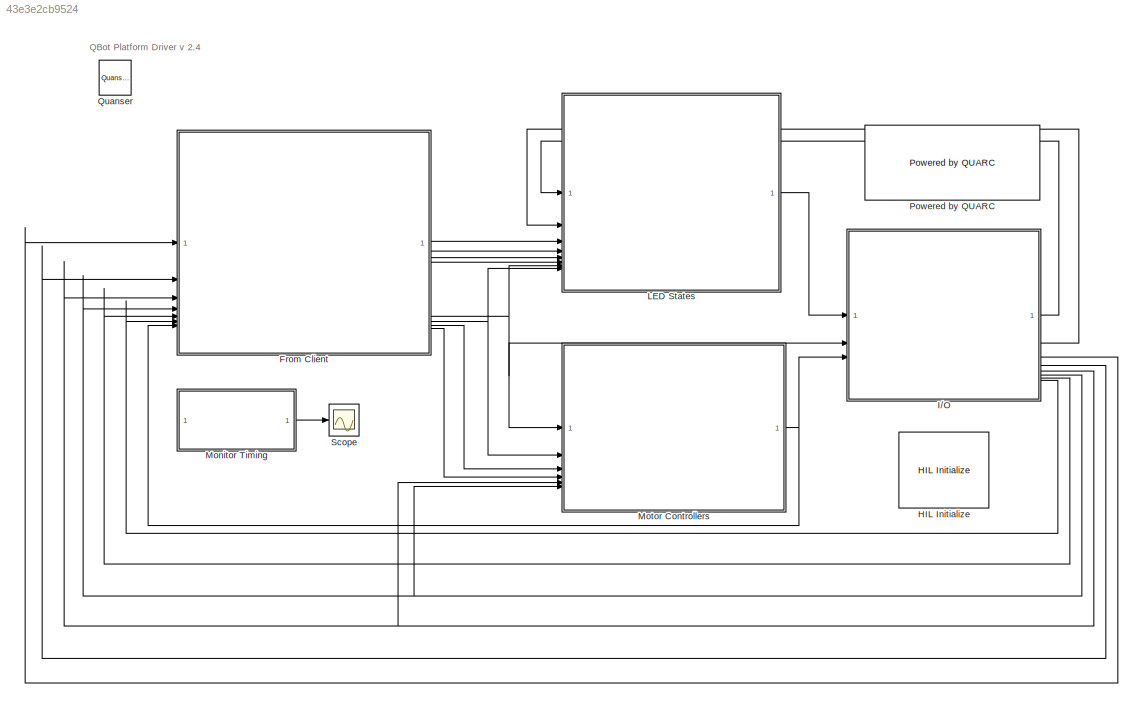
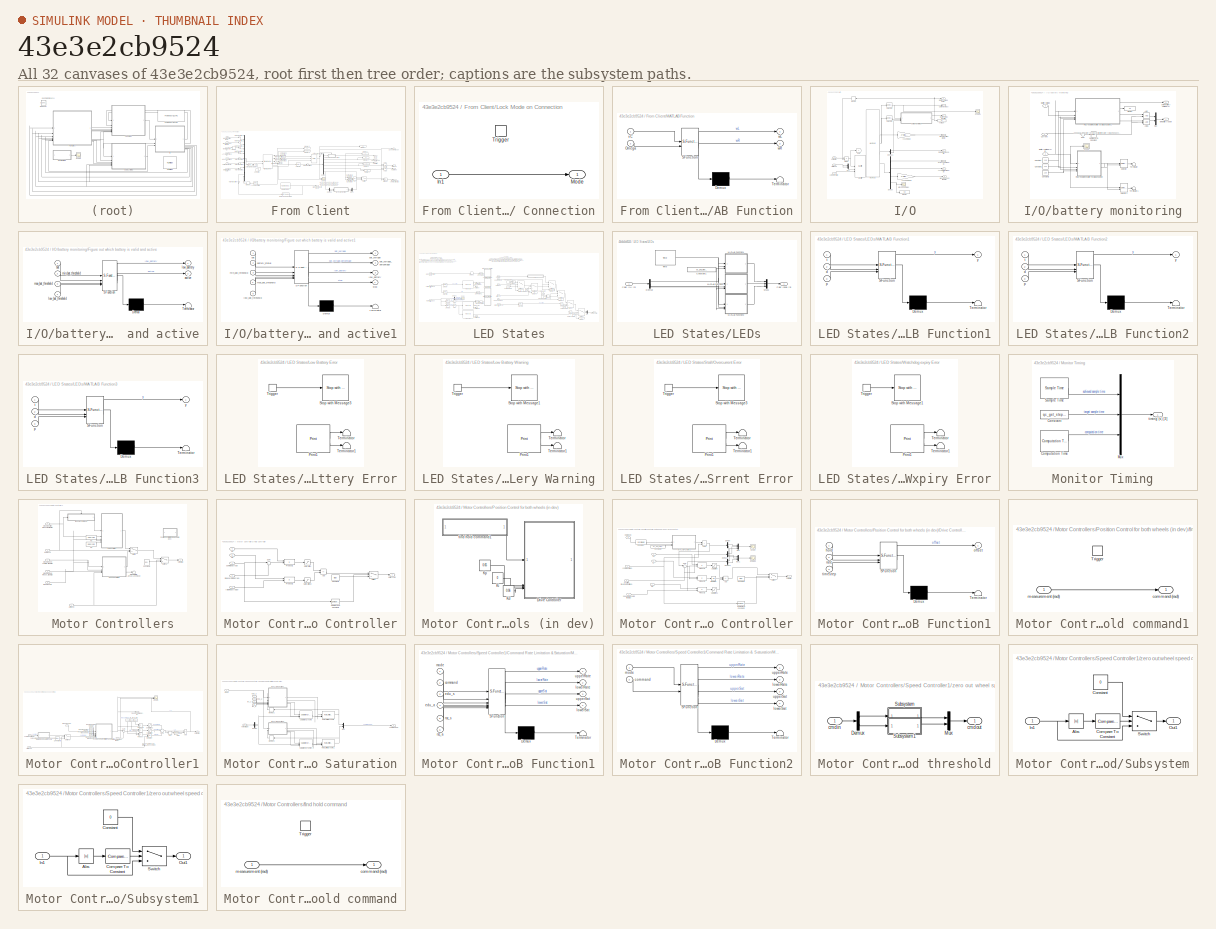
[diagram: thumbnail index - all 32 canvases of the model, root first then tree order]
MODEL slx_43e3e2cb9524
KIND model
CONFIG AbsTol = auto
CONFIG EnableMultiTasking = on
CONFIG FixedStep = 1/30
CONFIG MaxStep = auto
CONFIG MinStep = auto
CONFIG RelTol = 1e-3
CONFIG SampleTimeConstraint = Unconstrained
CONFIG SolverName = FixedStepDiscrete
CONFIG StartTime = 0.0
CONFIG StopTime = inf
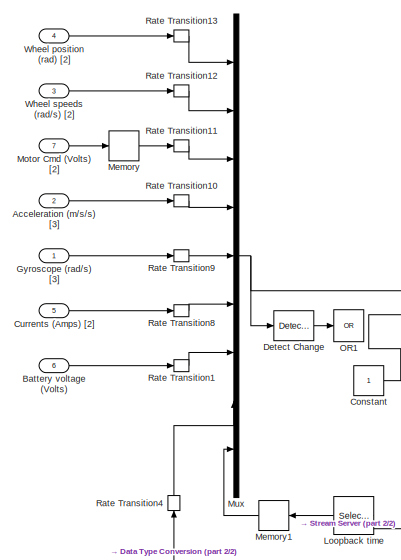
[diagram: From Client - part 1/2, left side, full height]
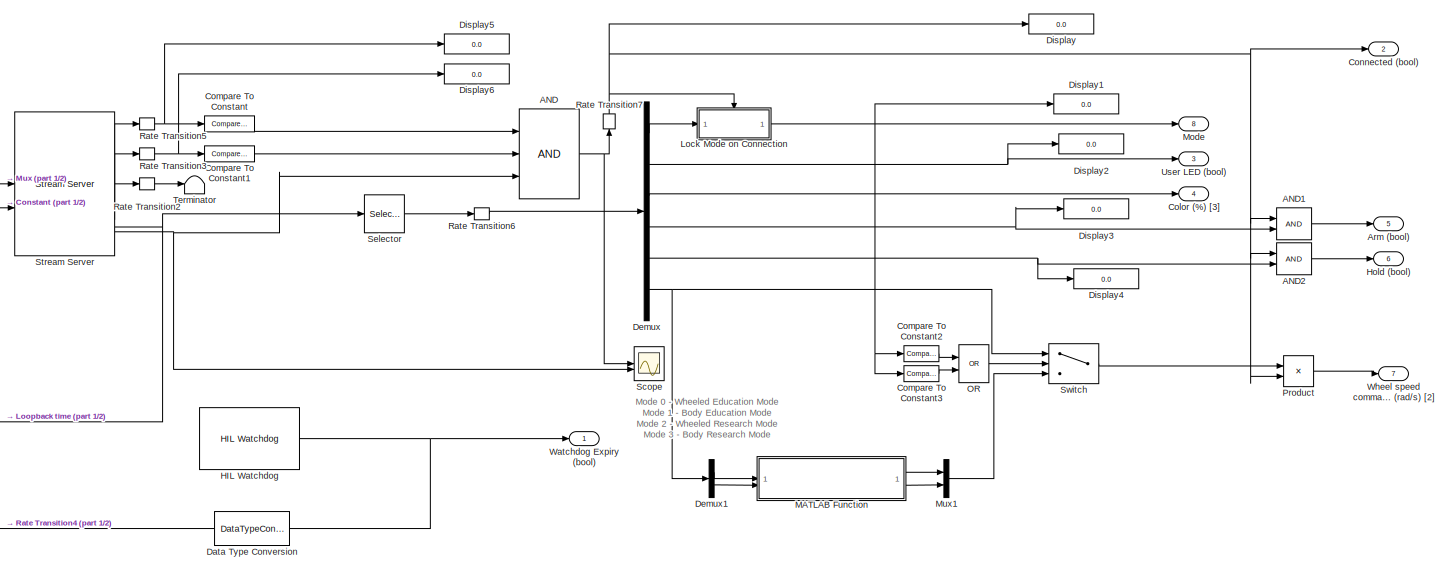
[diagram: From Client - part 2/2, most of the canvas]
BLOCK [SubSystem] From Client
BLOCK [Logic] From Client/AND
  AllPortsSameDT = off
  IconShape = distinctive
  Inputs = 3
  OutDataTypeStr = boolean
BLOCK [Logic] From Client/AND1
  AllPortsSameDT = off
  IconShape = distinctive
  OutDataTypeStr = boolean
BLOCK [Logic] From Client/AND2
  AllPortsSameDT = off
  IconShape = distinctive
  OutDataTypeStr = boolean
BLOCK [Inport] From Client/Acceleration (m//s//s) [3]
  Port = 2
BLOCK [Outport] From Client/Arm (bool)
  Port = 5
BLOCK [Inport] From Client/Battery voltage (Volts)
  Port = 6
BLOCK [Outport] From Client/Color (%) [3]
  Port = 4
BLOCK [Reference] From Client/Compare To Constant  REF=simulink/Logic and Bit
Operations/Compare
To Constant
  SourceBlock = simulink/Logic and Bit\nOperations/Compare\nTo Constant
  SourceType = Compare To Constant
BLOCK [Reference] From Client/Compare To Constant1  REF=simulink/Logic and Bit
Operations/Compare
To Constant
  SourceBlock = simulink/Logic and Bit\nOperations/Compare\nTo Constant
  SourceType = Compare To Constant
BLOCK [Reference] From Client/Compare To Constant2  REF=simulink/Logic and Bit
Operations/Compare
To Constant
  SourceBlock = simulink/Logic and Bit\nOperations/Compare\nTo Constant
  SourceType = Compare To Constant
BLOCK [Reference] From Client/Compare To Constant3  REF=simulink/Logic and Bit
Operations/Compare
To Constant
  SourceBlock = simulink/Logic and Bit\nOperations/Compare\nTo Constant
  SourceType = Compare To Constant
BLOCK [Outport] From Client/Connected (bool)
  Port = 2
BLOCK [Constant] From Client/Constant
BLOCK [Inport] From Client/Currents (Amps) [2]
  Port = 5
BLOCK [DataTypeConversion] From Client/Data Type Conversion
  NameLocation = top
  RndMeth = Floor
  SaturateOnIntegerOverflow = off
BLOCK [Demux] From Client/Demux
  Outputs = [1 1 3 1 1 2]
BLOCK [Demux] From Client/Demux1
  NameLocation = left
  Outputs = 2
BLOCK [Reference] From Client/Detect Change  REF=simulink/Logic and Bit
Operations/Detect
Change
  SourceBlock = simulink/Logic and Bit\nOperations/Detect\nChange
  SourceType = Detect Change
BLOCK [Display] From Client/Display
  Decimation = 1
BLOCK [Display] From Client/Display1
  Decimation = 1
BLOCK [Display] From Client/Display2
  Decimation = 1
BLOCK [Display] From Client/Display3
  Decimation = 1
BLOCK [Display] From Client/Display4
  Decimation = 1
BLOCK [Display] From Client/Display5
  Decimation = 1
BLOCK [Display] From Client/Display6
  Decimation = 1
BLOCK [Inport] From Client/Gyroscope (rad//s) [3]
BLOCK [Reference] From Client/HIL Watchdog  REF=quarc_library/Data Acquisition/Generic/Watchdog/HIL Watchdog
  AttributesFormatString = (%<object_name>)
  SourceBlock = quarc_library/Data Acquisition/Generic/Watchdog/HIL Watchdog
  SourceProductName = QUARC Targets
  SourceType = HIL Watchdog
  UserDataPersistent = on
BLOCK [Outport] From Client/Hold (bool)
  Port = 6
BLOCK [SubSystem] From Client/Lock Mode on Connection
  TreatAsAtomicUnit = on
BLOCK [Inport] From Client/Lock Mode on Connection/In1
BLOCK [Outport] From Client/Lock Mode on Connection/Mode
BLOCK [TriggerPort] From Client/Lock Mode on Connection/Trigger
  StatesWhenEnabling = held
  VariantControl = (inherit)
BLOCK [Selector] From Client/Loopback time
  IndexOptions = Index vector (dialog)
  Indices = 10
  InputPortWidth = 10
  NameLocation = top
  OutputSizes = 1
BLOCK [SubSystem] From Client/MATLAB Function
  ErrorFcn = Stateflow.Translate.translate
  LibrarySourceBlock = simulink/User-Defined\nFunctions/MATLAB Function
  PermitHierarchicalResolution = ExplicitOnly
  SFBlockType = MATLAB Function
  TreatAsAtomicUnit = on
BLOCK [Demux] From Client/MATLAB Function/ Demux 
  Outputs = 1
BLOCK [S-Function] From Client/MATLAB Function/ SFunction 
  EnableBusSupport = on
  FunctionName = sf_sfun
  PortCounts = [2 3]
  SFcnIsStateOwnerBlock = off
  SFunctionDeploymentMode = off
  Tag = Stateflow S-Function 7
BLOCK [Terminator] From Client/MATLAB Function/ Terminator 
BLOCK [Inport] From Client/MATLAB Function/Omega
  Port = 2
BLOCK [Inport] From Client/MATLAB Function/vC
BLOCK [Outport] From Client/MATLAB Function/wL
BLOCK [Outport] From Client/MATLAB Function/wR
  Port = 2
BLOCK [Memory] From Client/Memory
BLOCK [Memory] From Client/Memory1
  InheritSampleTime = on
  NameLocation = top
BLOCK [Outport] From Client/Mode
  Port = 8
BLOCK [Inport] From Client/Motor Cmd (Volts) [2]
  Port = 7
BLOCK [Mux] From Client/Mux
  DisplayOption = bar
  Inputs = 9
BLOCK [Mux] From Client/Mux1
  DisplayOption = bar
  Inputs = 2
BLOCK [Logic] From Client/OR
  AllPortsSameDT = off
  IconShape = distinctive
  Operator = OR
  OutDataTypeStr = boolean
BLOCK [Logic] From Client/OR1
  AllPortsSameDT = off
  IconShape = distinctive
  Inputs = 1
  Operator = OR
BLOCK [Product] From Client/Product
BLOCK [RateTransition] From Client/Rate Transition1
BLOCK [RateTransition] From Client/Rate Transition10
BLOCK [RateTransition] From Client/Rate Transition11
BLOCK [RateTransition] From Client/Rate Transition12
BLOCK [RateTransition] From Client/Rate Transition13
BLOCK [RateTransition] From Client/Rate Transition2
BLOCK [RateTransition] From Client/Rate Transition3
BLOCK [RateTransition] From Client/Rate Transition4
  NameLocation = right
BLOCK [RateTransition] From Client/Rate Transition5
BLOCK [RateTransition] From Client/Rate Transition6
BLOCK [RateTransition] From Client/Rate Transition7
  NameLocation = right
BLOCK [RateTransition] From Client/Rate Transition8
BLOCK [RateTransition] From Client/Rate Transition9
BLOCK [Scope] From Client/Scope
  Floating = off
  NumInputPorts = 3
  ScopeSpecificationString = Simulink.scopes.TimeScopeBlockCfg('CurrentConfiguration', extmgr.ConfigurationSet(extmgr.Configuration('Core','General UI',true),extmgr.Configuration('Core','Source UI',true),extmgr.Configuration('Sources','WiredSimulink',true,'DataLoggingVariableName','ScopeData1'),extmgr.Configuration('Visuals','Time Domain',true,'SerializedDisplays',{struct('MinYLimReal','-0.125','MaxYLimReal','1.125','YLabelRe...<+1574ch>
BLOCK [Selector] From Client/Selector
  IndexOptions = Index vector (dialog)
  Indices = 1:9
  InputPortWidth = 10
  OutputSizes = 1
BLOCK [Reference] From Client/Stream Server  REF=quarc_library/Communications/Basic/Stream Server
  AttributesFormatString = "tcpip://localhost:18888?nagle='off'"
  SourceBlock = quarc_library/Communications/Basic/Stream Server
  SourceProductName = QUARC Targets
  SourceType = Stream Server
BLOCK [Switch] From Client/Switch
  Criteria = u2 > Threshold
  InputSameDT = off
  SaturateOnIntegerOverflow = off
BLOCK [Terminator] From Client/Terminator
BLOCK [Outport] From Client/User LED (bool)
  Port = 3
BLOCK [Outport] From Client/Watchdog Expiry (bool)
BLOCK [Inport] From Client/Wheel position (rad) [2]
  Port = 4
BLOCK [Outport] From Client/Wheel speed command (rad//s) [2]
  Port = 7
BLOCK [Inport] From Client/Wheel speeds (rad//s) [2]
  Port = 3
BLOCK [Reference] HIL Initialize  REF=quarc_library/Data Acquisition/Generic/Configuration/HIL Initialize
  AttributesFormatString = %<object_name> (%<board_type>-%<board_number>)
  SourceBlock = quarc_library/Data Acquisition/Generic/Configuration/HIL Initialize
  SourceProductName = QUARC Targets
  SourceType = HIL Initialize
  UserDataPersistent = on
BLOCK [SubSystem] I//O
BLOCK [Outport] I//O/Acceleration (m//s//s) [3]
  Port = 4
BLOCK [Inport] I//O/Arm (bool)
  Port = 2
BLOCK [Outport] I//O/Battery status (bool) [2]
BLOCK [Outport] I//O/Battery voltage (Volts)
  Port = 8
BLOCK [Outport] I//O/Currents (Amps)
  Port = 7
BLOCK [Demux] I//O/Demux
  Outputs = [3 3 2 1]
BLOCK [Demux] I//O/Demux1
  Outputs = [8 2]
BLOCK [Display] I//O/Display
BLOCK [Product] I//O/Divide
  Inputs = */
BLOCK [Goto] I//O/Goto
  TagVisibility = global
BLOCK [Outport] I//O/Gyroscope (rad//s) [3]
  Port = 3
BLOCK [Reference] I//O/HIL Read  REF=quarc_library/Data Acquisition/Generic/Immediate I//O/HIL Read
  AttributesFormatString = (%<object_name>)
  SourceBlock = quarc_library/Data Acquisition/Generic/Immediate I//O/HIL Read
  SourceProductName = QUARC Targets
  SourceType = HIL Read
  UserDataPersistent = on
BLOCK [Reference] I//O/HIL Write  REF=quarc_library/Data Acquisition/Generic/Immediate I//O/HIL Write
  AttributesFormatString = (%<object_name>)
  SourceBlock = quarc_library/Data Acquisition/Generic/Immediate I//O/HIL Write
  SourceProductName = QUARC Targets
  SourceType = HIL Write
  UserDataPersistent = on
BLOCK [Inport] I//O/LEDs (bool) [6]
BLOCK [Memory] I//O/Memory
  InitialCondition = 13.5
  NameLocation = top
BLOCK [Scope] I//O/Missed Samples
  Floating = off
  NumInputPorts = 1
  ScopeSpecificationString = Simulink.scopes.TimeScopeBlockCfg('CurrentConfiguration', extmgr.ConfigurationSet(extmgr.Configuration('Core','General UI',true),extmgr.Configuration('Core','Source UI',true),extmgr.Configuration('Sources','WiredSimulink',true,'DataLoggingVariableName','ScopeData1'),extmgr.Configuration('Visuals','Time Domain',true,'SerializedDisplays',{struct('MinYLimReal','-1.00000','MaxYLimReal','1.00000','YLab...<+1485ch>
BLOCK [Mux] I//O/Mux
  DisplayOption = bar
  Inputs = 2
BLOCK [Scope] I//O/Scope1
  Floating = off
  NumInputPorts = 1
  ScopeSpecificationString = Simulink.scopes.TimeScopeBlockCfg('CurrentConfiguration', extmgr.ConfigurationSet(extmgr.Configuration('Core','General UI',true),extmgr.Configuration('Core','Source UI',true),extmgr.Configuration('Sources','WiredSimulink',true,'DataLoggingVariableName','ScopeData2'),extmgr.Configuration('Visuals','Time Domain',true,'SerializedDisplays',{struct('MinYLimReal','-0.00068','MaxYLimReal','0.00615','YLab...<+1385ch>
BLOCK [Selector] I//O/Selector1
  IndexOptions = Index vector (dialog)
  Indices = 3:4
  InputPortWidth = 4
  OutputSizes = 1
BLOCK [Selector] I//O/Selector2
  IndexOptions = Index vector (dialog)
  Indices = 1:2
  InputPortWidth = 4
  OutputSizes = 1
BLOCK [Display] I//O/Voltage
  Decimation = 1
BLOCK [Inport] I//O/Volts (V) [2]
  Port = 3
BLOCK [Outport] I//O/Wheel position (rad) [2]
  Port = 6
BLOCK [Outport] I//O/Wheel speeds (rad//s) [2]
  Port = 5
BLOCK [SubSystem] I//O/battery monitoring
BLOCK [Logic] I//O/battery monitoring/AND
  AllPortsSameDT = off
  IconShape = distinctive
  OutDataTypeStr = boolean
BLOCK [Logic] I//O/battery monitoring/AND1
  AllPortsSameDT = off
  IconShape = distinctive
  OutDataTypeStr = boolean
BLOCK [Inport] I//O/battery monitoring/Battery Status
  Port = 3
BLOCK [Inport] I//O/battery monitoring/Battery Voltage (V) [2]
  NameLocation = top
  Port = 2
BLOCK [Reference] I//O/battery monitoring/Compare To Constant  REF=simulink/Logic and Bit
Operations/Compare
To Constant
  SourceBlock = simulink/Logic and Bit\nOperations/Compare\nTo Constant
  SourceType = Compare To Constant
BLOCK [Constant] I//O/battery monitoring/Constant
  Value = 11.6
BLOCK [Constant] I//O/battery monitoring/Constant1
  Value = 14.4
BLOCK [Constant] I//O/battery monitoring/Constant2
  Value = 12.0
BLOCK [Inport] I//O/battery monitoring/Current
BLOCK [Display] I//O/battery monitoring/Display
  Decimation = 1
BLOCK [SubSystem] I//O/battery monitoring/Figure out which battery is valid and active
  ErrorFcn = Stateflow.Translate.translate
  LibrarySourceBlock = simulink/User-Defined\nFunctions/MATLAB Function
  PermitHierarchicalResolution = ExplicitOnly
  SFBlockType = MATLAB Function
  TreatAsAtomicUnit = on
BLOCK [Demux] I//O/battery monitoring/Figure out which battery is valid and active/ Demux 
  Outputs = 1
BLOCK [S-Function] I//O/battery monitoring/Figure out which battery is valid and active/ SFunction 
  EnableBusSupport = on
  FunctionName = sf_sfun
  PortCounts = [4 3]
  SFcnIsStateOwnerBlock = off
  SFunctionDeploymentMode = off
  Tag = Stateflow S-Function 9
BLOCK [Terminator] I//O/battery monitoring/Figure out which battery is valid and active/ Terminator 
BLOCK [Outport] I//O/battery monitoring/Figure out which battery is valid and active/active
  Port = 2
BLOCK [Inport] I//O/battery monitoring/Figure out which battery is valid and active/bat
BLOCK [Inport] I//O/battery monitoring/Figure out which battery is valid and active/low_bat_threshold
  Port = 4
BLOCK [Outport] I//O/battery monitoring/Figure out which battery is valid and active/low_battery
BLOCK [Inport] I//O/battery monitoring/Figure out which battery is valid and active/max_bat_threshold
  Port = 3
BLOCK [Inport] I//O/battery monitoring/Figure out which battery is valid and active/min_bat_threshold
  Port = 2
BLOCK [SubSystem] I//O/battery monitoring/Figure out which battery is valid and active1
  ErrorFcn = Stateflow.Translate.translate
  LibrarySourceBlock = simulink/User-Defined\nFunctions/MATLAB Function
  PermitHierarchicalResolution = ExplicitOnly
  SFBlockType = MATLAB Function
  TreatAsAtomicUnit = on
BLOCK [Demux] I//O/battery monitoring/Figure out which battery is valid and active1/ Demux 
  Outputs = 1
BLOCK [S-Function] I//O/battery monitoring/Figure out which battery is valid and active1/ SFunction 
  EnableBusSupport = on
  FunctionName = sf_sfun
  PortCounts = [5 5]
  SFcnIsStateOwnerBlock = off
  SFunctionDeploymentMode = off
  Tag = Stateflow S-Function 5
BLOCK [Terminator] I//O/battery monitoring/Figure out which battery is valid and active1/ Terminator 
BLOCK [Inport] I//O/battery monitoring/Figure out which battery is valid and active1/bat
BLOCK [Outport] I//O/battery monitoring/Figure out which battery is valid and active1/bat_voltage
BLOCK [Outport] I//O/battery monitoring/Figure out which battery is valid and active1/bat_voltage_percentage
  Port = 2
BLOCK [Inport] I//O/battery monitoring/Figure out which battery is valid and active1/battery_status
  Port = 2
BLOCK [Inport] I//O/battery monitoring/Figure out which battery is valid and active1/low_bat_threshold
  Port = 5
BLOCK [Outport] I//O/battery monitoring/Figure out which battery is valid and active1/low_battery
  Port = 3
BLOCK [Inport] I//O/battery monitoring/Figure out which battery is valid and active1/max_bat_threshold
  Port = 4
BLOCK [Inport] I//O/battery monitoring/Figure out which battery is valid and active1/min_bat_threshold
  Port = 3
BLOCK [Outport] I//O/battery monitoring/Figure out which battery is valid and active1/stop
  Port = 4
BLOCK [Mux] I//O/battery monitoring/Mux
  DisplayOption = bar
  Inputs = 2
BLOCK [Scope] I//O/battery monitoring/Scope
  Floating = off
  NumInputPorts = 1
  ScopeSpecificationString = Simulink.scopes.TimeScopeBlockCfg('CurrentConfiguration', extmgr.ConfigurationSet(extmgr.Configuration('Core','General UI',true),extmgr.Configuration('Core','Source UI',true),extmgr.Configuration('Sources','WiredSimulink',true,'DataLoggingVariableName','ScopeData1'),extmgr.Configuration('Visuals','Time Domain',true,'SerializedDisplays',{struct('MinYLimReal','0.75149','MaxYLimReal','14.52656','YLab...<+1489ch>
BLOCK [Selector] I//O/battery monitoring/Selector
  IndexOptions = Index vector (port)
  Indices = [1 3]
  InputPortWidth = 2
  OutputSizes = 1
BLOCK [Selector] I//O/battery monitoring/Selector1
  IndexOptions = Index vector (port)
  Indices = [1 3]
  InputPortWidth = 2
  OutputSizes = 1
BLOCK [Sum] I//O/battery monitoring/Sum
  Inputs = 1
BLOCK [Terminator] I//O/battery monitoring/Terminator
BLOCK [Terminator] I//O/battery monitoring/Terminator1
BLOCK [Outport] I//O/battery monitoring/active battery voltage (V)
  Port = 2
BLOCK [Outport] I//O/battery monitoring/low battery (bool)
BLOCK [Gain] I//O/count   s//s to rad//s
  Gain = 2*pi/85/4
BLOCK [Gain] I//O/counts to rad
  Gain = 2*pi/85/4
BLOCK [Outport] I//O/motor status (bool) [8]
  Port = 2
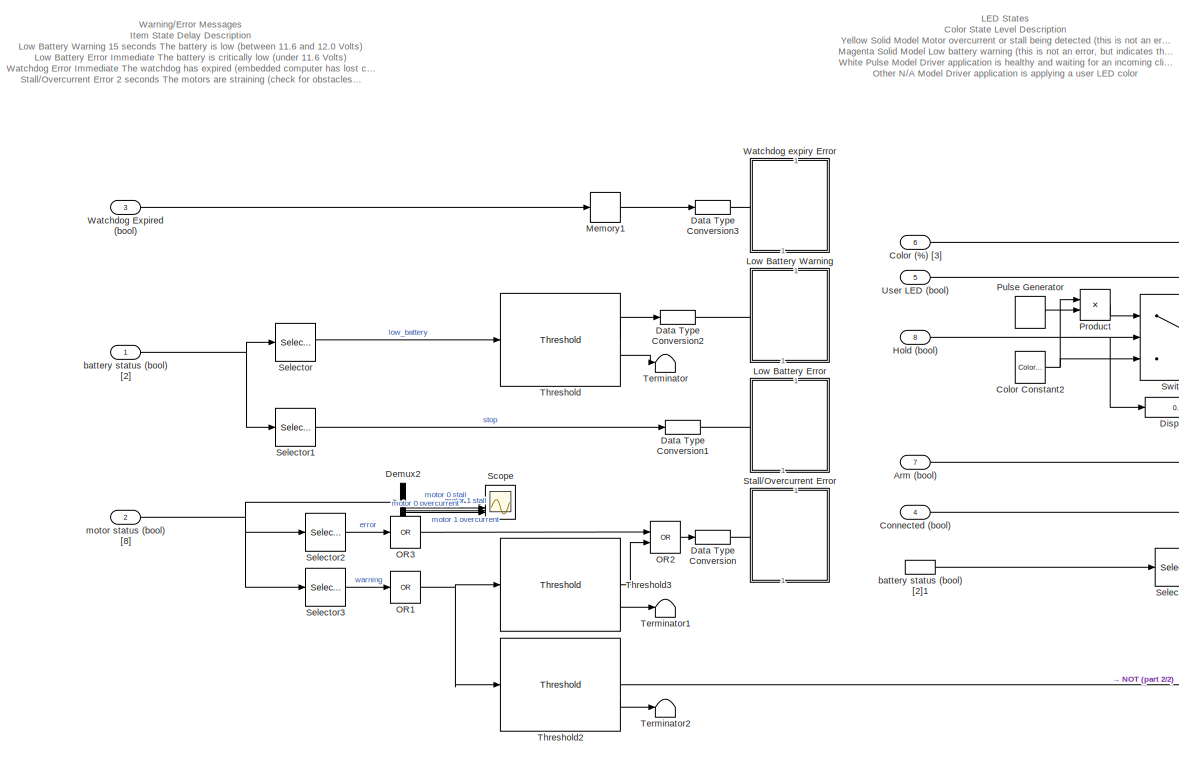
[diagram: LED States - part 1/2, left side, full height]
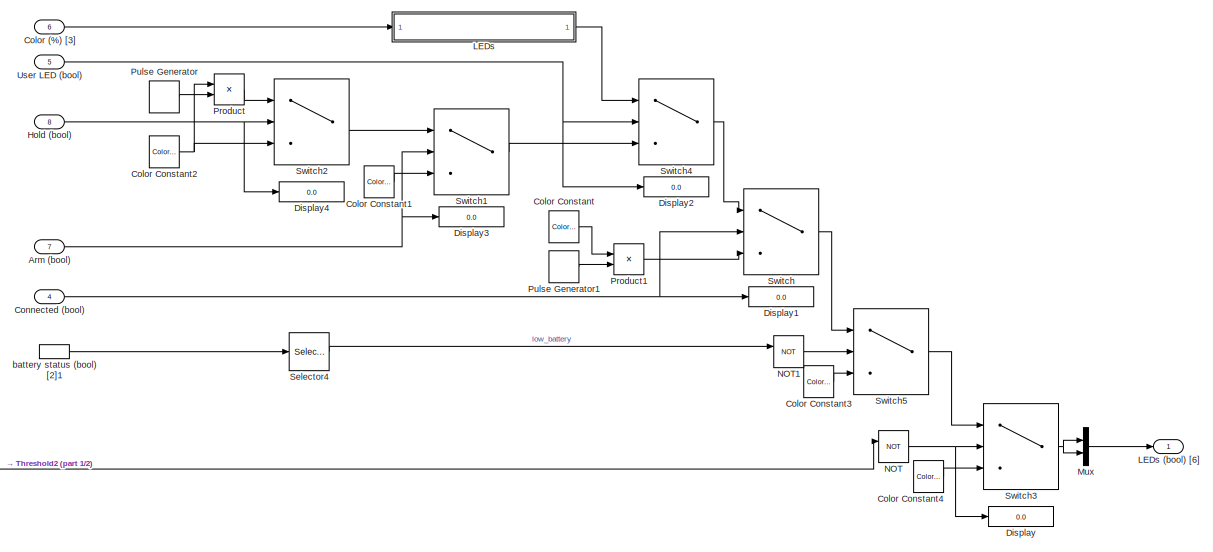
[diagram: LED States - part 2/2, middle right region]
BLOCK [SubSystem] LED States
BLOCK [Inport] LED States/Arm (bool)
  Port = 7
BLOCK [Inport] LED States/Color (%) [3]
  Port = 6
BLOCK [Reference] LED States/Color Constant  REF=quarc_library/Sources/Signals/Color Constant
  SourceBlock = quarc_library/Sources/Signals/Color Constant
  SourceProductName = QUARC Targets
  SourceType = Color Constant
BLOCK [Reference] LED States/Color Constant1  REF=quarc_library/Sources/Signals/Color Constant
  SourceBlock = quarc_library/Sources/Signals/Color Constant
  SourceProductName = QUARC Targets
  SourceType = Color Constant
BLOCK [Reference] LED States/Color Constant2  REF=quarc_library/Sources/Signals/Color Constant
  SourceBlock = quarc_library/Sources/Signals/Color Constant
  SourceProductName = QUARC Targets
  SourceType = Color Constant
BLOCK [Reference] LED States/Color Constant3  REF=quarc_library/Sources/Signals/Color Constant
  SourceBlock = quarc_library/Sources/Signals/Color Constant
  SourceProductName = QUARC Targets
  SourceType = Color Constant
BLOCK [Reference] LED States/Color Constant4  REF=quarc_library/Sources/Signals/Color Constant
  SourceBlock = quarc_library/Sources/Signals/Color Constant
  SourceProductName = QUARC Targets
  SourceType = Color Constant
BLOCK [Inport] LED States/Connected (bool)
  Port = 4
BLOCK [DataTypeConversion] LED States/Data Type Conversion
  RndMeth = Floor
  SaturateOnIntegerOverflow = off
BLOCK [DataTypeConversion] LED States/Data Type Conversion1
  RndMeth = Floor
  SaturateOnIntegerOverflow = off
BLOCK [DataTypeConversion] LED States/Data Type Conversion2
  RndMeth = Floor
  SaturateOnIntegerOverflow = off
BLOCK [DataTypeConversion] LED States/Data Type Conversion3
  RndMeth = Floor
  SaturateOnIntegerOverflow = off
BLOCK [Demux] LED States/Demux2
  Outputs = [2 2 2 2]
BLOCK [Display] LED States/Display
  Decimation = 1
BLOCK [Display] LED States/Display1
  Decimation = 1
BLOCK [Display] LED States/Display2
  Decimation = 1
BLOCK [Display] LED States/Display3
  Decimation = 1
BLOCK [Display] LED States/Display4
  Decimation = 1
BLOCK [Inport] LED States/Hold (bool)
  Port = 8
BLOCK [SubSystem] LED States/LEDs
  NameLocation = top
BLOCK [Outport] LED States/LEDs (bool) [6]
BLOCK [Inport] LED States/LEDs/Color (%) [3]
BLOCK [Outport] LED States/LEDs/Color (bool) [3]
BLOCK [Constant] LED States/LEDs/Constant1
  Value = qc_get_step_size*5
BLOCK [Demux] LED States/LEDs/Demux
  Outputs = 3
BLOCK [SubSystem] LED States/LEDs/MATLAB Function1
  ErrorFcn = Stateflow.Translate.translate
  LibrarySourceBlock = simulink/User-Defined\nFunctions/MATLAB Function
  PermitHierarchicalResolution = ExplicitOnly
  SFBlockType = MATLAB Function
  TreatAsAtomicUnit = on
BLOCK [Demux] LED States/LEDs/MATLAB Function1/ Demux 
  Outputs = 1
BLOCK [S-Function] LED States/LEDs/MATLAB Function1/ SFunction 
  EnableBusSupport = on
  FunctionName = sf_sfun
  PortCounts = [3 2]
  SFcnIsStateOwnerBlock = off
  SFunctionDeploymentMode = off
  Tag = Stateflow S-Function 1
BLOCK [Terminator] LED States/LEDs/MATLAB Function1/ Terminator 
BLOCK [Inport] LED States/LEDs/MATLAB Function1/d
  Port = 2
BLOCK [Inport] LED States/LEDs/MATLAB Function1/p
  Port = 3
BLOCK [Inport] LED States/LEDs/MATLAB Function1/t
BLOCK [Outport] LED States/LEDs/MATLAB Function1/y
BLOCK [SubSystem] LED States/LEDs/MATLAB Function2
  ErrorFcn = Stateflow.Translate.translate
  LibrarySourceBlock = simulink/User-Defined\nFunctions/MATLAB Function
  PermitHierarchicalResolution = ExplicitOnly
  SFBlockType = MATLAB Function
  TreatAsAtomicUnit = on
BLOCK [Demux] LED States/LEDs/MATLAB Function2/ Demux 
  Outputs = 1
BLOCK [S-Function] LED States/LEDs/MATLAB Function2/ SFunction 
  EnableBusSupport = on
  FunctionName = sf_sfun
  PortCounts = [3 2]
  SFcnIsStateOwnerBlock = off
  SFunctionDeploymentMode = off
  Tag = Stateflow S-Function 4
BLOCK [Terminator] LED States/LEDs/MATLAB Function2/ Terminator 
BLOCK [Inport] LED States/LEDs/MATLAB Function2/d
  Port = 2
BLOCK [Inport] LED States/LEDs/MATLAB Function2/p
  Port = 3
BLOCK [Inport] LED States/LEDs/MATLAB Function2/t
BLOCK [Outport] LED States/LEDs/MATLAB Function2/y
BLOCK [SubSystem] LED States/LEDs/MATLAB Function3
  ErrorFcn = Stateflow.Translate.translate
  LibrarySourceBlock = simulink/User-Defined\nFunctions/MATLAB Function
  PermitHierarchicalResolution = ExplicitOnly
  SFBlockType = MATLAB Function
  TreatAsAtomicUnit = on
BLOCK [Demux] LED States/LEDs/MATLAB Function3/ Demux 
  Outputs = 1
BLOCK [S-Function] LED States/LEDs/MATLAB Function3/ SFunction 
  EnableBusSupport = on
  FunctionName = sf_sfun
  PortCounts = [3 2]
  SFcnIsStateOwnerBlock = off
  SFunctionDeploymentMode = off
  Tag = Stateflow S-Function 6
BLOCK [Terminator] LED States/LEDs/MATLAB Function3/ Terminator 
BLOCK [Inport] LED States/LEDs/MATLAB Function3/d
  Port = 2
BLOCK [Inport] LED States/LEDs/MATLAB Function3/p
  Port = 3
BLOCK [Inport] LED States/LEDs/MATLAB Function3/t
BLOCK [Outport] LED States/LEDs/MATLAB Function3/y
BLOCK [Mux] LED States/LEDs/Mux1
  DisplayOption = bar
  Inputs = 3
BLOCK [Reference] LED States/LEDs/Time  REF=quarc_library/Sources/Time/Time
  SourceBlock = quarc_library/Sources/Time/Time
  SourceProductName = QUARC Targets
  SourceType = Time
BLOCK [SubSystem] LED States/Low Battery Error
BLOCK [Reference] LED States/Low Battery Error/Print1  REF=quarc_library/User Interface/Standard I//O/Print
  SourceBlock = quarc_library/User Interface/Standard I//O/Print
  SourceProductName = QUARC Targets
  SourceType = Print
BLOCK [Reference] LED States/Low Battery Error/Stop with Message3  REF=quarc_library/Sinks/Error Handling/Stop with Message
  AttributesFormatString = "%<message>"
  SourceBlock = quarc_library/Sinks/Error Handling/Stop with Message
  SourceProductName = QUARC Targets
  SourceType = Stop with Message
BLOCK [Terminator] LED States/Low Battery Error/Terminator
BLOCK [Terminator] LED States/Low Battery Error/Terminator1
BLOCK [TriggerPort] LED States/Low Battery Error/Trigger
  OutputDataType = double
  PortDimensions = 1
  ShowOutputPort = on
  StatesWhenEnabling = held
  VariantControl = (inherit)
BLOCK [SubSystem] LED States/Low Battery Warning
BLOCK [Reference] LED States/Low Battery Warning/Print1  REF=quarc_library/User Interface/Standard I//O/Print
  SourceBlock = quarc_library/User Interface/Standard I//O/Print
  SourceProductName = QUARC Targets
  SourceType = Print
BLOCK [Reference] LED States/Low Battery Warning/Stop with Message1  REF=quarc_library/Sinks/Error Handling/Stop with Message
  AttributesFormatString = "%<message>"
  SourceBlock = quarc_library/Sinks/Error Handling/Stop with Message
  SourceProductName = QUARC Targets
  SourceType = Stop with Message
BLOCK [Terminator] LED States/Low Battery Warning/Terminator
BLOCK [Terminator] LED States/Low Battery Warning/Terminator1
BLOCK [TriggerPort] LED States/Low Battery Warning/Trigger
  OutputDataType = double
  PortDimensions = 1
  ShowOutputPort = on
  StatesWhenEnabling = held
  VariantControl = (inherit)
BLOCK [Memory] LED States/Memory1
BLOCK [Mux] LED States/Mux
  DisplayOption = bar
  Inputs = 2
BLOCK [Logic] LED States/NOT
  AllPortsSameDT = off
  IconShape = distinctive
  Operator = NOT
  OutDataTypeStr = boolean
BLOCK [Logic] LED States/NOT1
  AllPortsSameDT = off
  IconShape = distinctive
  Operator = NOT
  OutDataTypeStr = boolean
BLOCK [Logic] LED States/OR1
  AllPortsSameDT = off
  IconShape = distinctive
  Inputs = 1
  Operator = OR
  OutDataTypeStr = boolean
BLOCK [Logic] LED States/OR2
  AllPortsSameDT = off
  IconShape = distinctive
  Operator = OR
  OutDataTypeStr = boolean
BLOCK [Logic] LED States/OR3
  AllPortsSameDT = off
  IconShape = distinctive
  Inputs = 1
  Operator = OR
  OutDataTypeStr = boolean
BLOCK [Product] LED States/Product
BLOCK [Product] LED States/Product1
BLOCK [DiscretePulseGenerator] LED States/Pulse Generator
  Period = 1
  PulseType = Time based
  PulseWidth = 70
BLOCK [DiscretePulseGenerator] LED States/Pulse Generator1
  Period = 1
  PulseType = Time based
  PulseWidth = 30
BLOCK [Scope] LED States/Scope
  Floating = off
  NumInputPorts = 4
  ScopeSpecificationString = Simulink.scopes.TimeScopeBlockCfg('CurrentConfiguration', extmgr.ConfigurationSet(extmgr.Configuration('Core','General UI',true),extmgr.Configuration('Core','Source UI',true),extmgr.Configuration('Sources','WiredSimulink',true,'DataLoggingVariableName','ScopeData1'),extmgr.Configuration('Visuals','Time Domain',true,'SerializedDisplays',{struct('MinYLimReal','-0.125','MaxYLimReal','1.125','YLabelRe...<+3727ch>
BLOCK [Selector] LED States/Selector
  IndexOptions = Index vector (dialog)
  Indices = 1
  InputPortWidth = 2
  OutputSizes = 1
BLOCK [Selector] LED States/Selector1
  IndexOptions = Index vector (dialog)
  Indices = 2
  InputPortWidth = 2
  OutputSizes = 1
BLOCK [Selector] LED States/Selector2
  IndexOptions = Index vector (dialog)
  Indices = [2 4 6 8]
  InputPortWidth = 8
  OutputSizes = 1
BLOCK [Selector] LED States/Selector3
  IndexOptions = Index vector (dialog)
  Indices = [1 3 5 7]
  InputPortWidth = 8
  OutputSizes = 1
BLOCK [Selector] LED States/Selector4
  IndexOptions = Index vector (dialog)
  Indices = 1
  InputPortWidth = 2
  OutputSizes = 1
BLOCK [SubSystem] LED States/Stall//Overcurrent Error
BLOCK [Reference] LED States/Stall//Overcurrent Error/Print1  REF=quarc_library/User Interface/Standard I//O/Print
  SourceBlock = quarc_library/User Interface/Standard I//O/Print
  SourceProductName = QUARC Targets
  SourceType = Print
BLOCK [Reference] LED States/Stall//Overcurrent Error/Stop with Message3  REF=quarc_library/Sinks/Error Handling/Stop with Message
  AttributesFormatString = "%<message>"
  SourceBlock = quarc_library/Sinks/Error Handling/Stop with Message
  SourceProductName = QUARC Targets
  SourceType = Stop with Message
BLOCK [Terminator] LED States/Stall//Overcurrent Error/Terminator
BLOCK [Terminator] LED States/Stall//Overcurrent Error/Terminator1
BLOCK [TriggerPort] LED States/Stall//Overcurrent Error/Trigger
  OutputDataType = double
  PortDimensions = 1
  ShowOutputPort = on
  StatesWhenEnabling = held
  VariantControl = (inherit)
BLOCK [Switch] LED States/Switch
  Criteria = u2 > Threshold
  InputSameDT = off
  SaturateOnIntegerOverflow = off
BLOCK [Switch] LED States/Switch1
  Criteria = u2 > Threshold
  InputSameDT = off
  SaturateOnIntegerOverflow = off
BLOCK [Switch] LED States/Switch2
  Criteria = u2 > Threshold
  InputSameDT = off
  SaturateOnIntegerOverflow = off
BLOCK [Switch] LED States/Switch3
  Criteria = u2 > Threshold
  InputSameDT = off
  SaturateOnIntegerOverflow = off
BLOCK [Switch] LED States/Switch4
  Criteria = u2 > Threshold
  InputSameDT = off
  SaturateOnIntegerOverflow = off
BLOCK [Switch] LED States/Switch5
  Criteria = u2 > Threshold
  InputSameDT = off
  SaturateOnIntegerOverflow = off
BLOCK [Terminator] LED States/Terminator
BLOCK [Terminator] LED States/Terminator1
BLOCK [Terminator] LED States/Terminator2
BLOCK [Reference] LED States/Threshold  REF=quarc_library/Discontinuities/Threshold
  SourceBlock = quarc_library/Discontinuities/Threshold
  SourceProductName = QUARC Targets
  SourceType = Threshold
BLOCK [Reference] LED States/Threshold2  REF=quarc_library/Discontinuities/Threshold
  SourceBlock = quarc_library/Discontinuities/Threshold
  SourceProductName = QUARC Targets
  SourceType = Threshold
BLOCK [Reference] LED States/Threshold3  REF=quarc_library/Discontinuities/Threshold
  SourceBlock = quarc_library/Discontinuities/Threshold
  SourceProductName = QUARC Targets
  SourceType = Threshold
BLOCK [Inport] LED States/User LED (bool)
  Port = 5
BLOCK [Inport] LED States/Watchdog Expired (bool)
  Port = 3
BLOCK [SubSystem] LED States/Watchdog expiry Error
BLOCK [Reference] LED States/Watchdog expiry Error/Print1  REF=quarc_library/User Interface/Standard I//O/Print
  SourceBlock = quarc_library/User Interface/Standard I//O/Print
  SourceProductName = QUARC Targets
  SourceType = Print
BLOCK [Reference] LED States/Watchdog expiry Error/Stop with Message1  REF=quarc_library/Sinks/Error Handling/Stop with Message
  AttributesFormatString = "%<message>"
  SourceBlock = quarc_library/Sinks/Error Handling/Stop with Message
  SourceProductName = QUARC Targets
  SourceType = Stop with Message
BLOCK [Terminator] LED States/Watchdog expiry Error/Terminator
BLOCK [Terminator] LED States/Watchdog expiry Error/Terminator1
BLOCK [TriggerPort] LED States/Watchdog expiry Error/Trigger
  OutputDataType = double
  PortDimensions = 1
  ShowOutputPort = on
  StatesWhenEnabling = held
  VariantControl = (inherit)
BLOCK [Inport] LED States/battery status (bool) [2]
BLOCK [InportShadow] LED States/battery status (bool) [2]1
BLOCK [Inport] LED States/motor status (bool) [8]
  Port = 2
BLOCK [SubSystem] Monitor Timing
BLOCK [Reference] Monitor Timing/Computation Time  REF=quarc_library/Sources/Time/Computation Time
  SourceBlock = quarc_library/Sources/Time/Computation Time
  SourceProductName = QUARC Targets
  SourceType = Computation Time
BLOCK [Constant] Monitor Timing/Constant
  Value = qc_get_step_size
BLOCK [Mux] Monitor Timing/Mux
  DisplayOption = bar
  Inputs = 3
BLOCK [Reference] Monitor Timing/Sample Time  REF=quarc_library/Sources/Time/Sample Time
  Priority = -99
  SourceBlock = quarc_library/Sources/Time/Sample Time
  SourceProductName = QUARC Targets
  SourceType = Sample Time
BLOCK [Outport] Monitor Timing/timing (s) [3]
BLOCK [SubSystem] Motor Controllers
BLOCK [Inport] Motor Controllers/Arm (bool)
BLOCK [Constant] Motor Controllers/Constant2
  Value = [0; 0]
  VectorParams1D = off
BLOCK [Inport] Motor Controllers/Hold (bool)
  Port = 2
BLOCK [SubSystem] Motor Controllers/Hold Controller
BLOCK [Sum] Motor Controllers/Hold Controller/Add
  IconShape = rectangular
  Inputs = +-
BLOCK [Reference] Motor Controllers/Hold Controller/Compare To Constant2  REF=simulink/Logic and Bit
Operations/Compare
To Constant
  SourceBlock = simulink/Logic and Bit\nOperations/Compare\nTo Constant
  SourceType = Compare To Constant
BLOCK [Constant] Motor Controllers/Hold Controller/Constant1
  Value = [0; 0]
  VectorParams1D = off
BLOCK [Inport] Motor Controllers/Hold Controller/Kd
  Port = 5
BLOCK [Inport] Motor Controllers/Hold Controller/Kp
  Port = 4
BLOCK [Product] Motor Controllers/Hold Controller/Product1
BLOCK [Product] Motor Controllers/Hold Controller/Product2
BLOCK [Saturate] Motor Controllers/Hold Controller/Saturation
  LowerLimit = [-9.45 -9.45]
  UpperLimit = [9.45 9.45]
BLOCK [Saturate] Motor Controllers/Hold Controller/Saturation2
  LowerLimit = [-4.05 -4.05]
  UpperLimit = [4.05 4.05]
BLOCK [Sum] Motor Controllers/Hold Controller/Sum
  Inputs = |+-
BLOCK [Switch] Motor Controllers/Hold Controller/Switch
  Criteria = u2 > Threshold
  InputSameDT = off
  SaturateOnIntegerOverflow = off
BLOCK [Outport] Motor Controllers/Hold Controller/Volts (V) [2]
BLOCK [Inport] Motor Controllers/Hold Controller/command (rad)
BLOCK [Inport] Motor Controllers/Hold Controller/measurement (rad)
  Port = 2
BLOCK [Inport] Motor Controllers/Hold Controller/rate meas (rad//s)
  Port = 3
BLOCK [Constant] Motor Controllers/Kd 
  Value = 0.00 * 13.5
BLOCK [Constant] Motor Controllers/Kp 
  Value = 1.50 * 13.5
BLOCK [Inport] Motor Controllers/Mode (enum)
  Port = 4
BLOCK [SubSystem] Motor Controllers/Position Control for both wheels (in dev)
  Commented = on
BLOCK [SubSystem] Motor Controllers/Position Control for both wheels (in dev)/Drive Controller
BLOCK [Sum] Motor Controllers/Position Control for both wheels (in dev)/Drive Controller/Add
  IconShape = rectangular
  Inputs = ++-
BLOCK [Sum] Motor Controllers/Position Control for both wheels (in dev)/Drive Controller/Add1
  IconShape = rectangular
BLOCK [Reference] Motor Controllers/Position Control for both wheels (in dev)/Drive Controller/Compare To Constant2  REF=simulink/Logic and Bit
Operations/Compare
To Constant
  SourceBlock = simulink/Logic and Bit\nOperations/Compare\nTo Constant
  SourceType = Compare To Constant
BLOCK [Constant] Motor Controllers/Position Control for both wheels (in dev)/Drive Controller/Constant
  Value = 10*pi/180
BLOCK [Constant] Motor Controllers/Position Control for both wheels (in dev)/Drive Controller/Constant1
  Value = [0; 0]
  VectorParams1D = off
BLOCK [Constant] Motor Controllers/Position Control for both wheels (in dev)/Drive Controller/Constant2
  Value = qc_get_step_size
BLOCK [Demux] Motor Controllers/Position Control for both wheels (in dev)/Drive Controller/Demux
  Outputs = 2
BLOCK [Demux] Motor Controllers/Position Control for both wheels (in dev)/Drive Controller/Demux1
  Outputs = 2
BLOCK [Demux] Motor Controllers/Position Control for both wheels (in dev)/Drive Controller/Demux2
  Outputs = 2
BLOCK [Inport] Motor Controllers/Position Control for both wheels (in dev)/Drive Controller/Hold (bool)
  Port = 3
BLOCK [Integrator] Motor Controllers/Position Control for both wheels (in dev)/Drive Controller/Integrator
  InitialCondition = [0 0]
  LimitOutput = on
  LowerSaturationLimit = [-0.5 -0.5]
  UpperSaturationLimit = [0.5 0.5]
BLOCK [Inport] Motor Controllers/Position Control for both wheels (in dev)/Drive Controller/Kd
  Port = 7
BLOCK [Inport] Motor Controllers/Position Control for both wheels (in dev)/Drive Controller/Ki
  Port = 6
BLOCK [Inport] Motor Controllers/Position Control for both wheels (in dev)/Drive Controller/Kp
  Port = 5
BLOCK [SubSystem] Motor Controllers/Position Control for both wheels (in dev)/Drive Controller/MATLAB Function1
  ErrorFcn = Stateflow.Translate.translate
  LibrarySourceBlock = simulink/User-Defined\nFunctions/MATLAB Function
  PermitHierarchicalResolution = ExplicitOnly
  SFBlockType = MATLAB Function
  TreatAsAtomicUnit = on
BLOCK [Demux] Motor Controllers/Position Control for both wheels (in dev)/Drive Controller/MATLAB Function1/ Demux 
  Outputs = 1
BLOCK [S-Function] Motor Controllers/Position Control for both wheels (in dev)/Drive Controller/MATLAB Function1/ SFunction 
  EnableBusSupport = off
  FunctionName = sf_sfun
  PortCounts = [3 2]
  SFcnIsStateOwnerBlock = off
  SFunctionDeploymentMode = off
  Tag = Stateflow S-Function 18
BLOCK [Terminator] Motor Controllers/Position Control for both wheels (in dev)/Drive Controller/MATLAB Function1/ Terminator 
BLOCK [Inport] Motor Controllers/Position Control for both wheels (in dev)/Drive Controller/MATLAB Function1/hold
BLOCK [Outport] Motor Controllers/Position Control for both wheels (in dev)/Drive Controller/MATLAB Function1/offset
BLOCK [Inport] Motor Controllers/Position Control for both wheels (in dev)/Drive Controller/MATLAB Function1/rate
  Port = 2
BLOCK [Inport] Motor Controllers/Position Control for both wheels (in dev)/Drive Controller/MATLAB Function1/timestep
  Port = 3
BLOCK [Mux] Motor Controllers/Position Control for both wheels (in dev)/Drive Controller/Mux
  DisplayOption = bar
  Inputs = 3
BLOCK [Mux] Motor Controllers/Position Control for both wheels (in dev)/Drive Controller/Mux1
  DisplayOption = bar
  Inputs = 3
BLOCK [Outport] Motor Controllers/Position Control for both wheels (in dev)/Drive Controller/PWM (%) [2]
BLOCK [Product] Motor Controllers/Position Control for both wheels (in dev)/Drive Controller/Product1
BLOCK [Product] Motor Controllers/Position Control for both wheels (in dev)/Drive Controller/Product2
BLOCK [Product] Motor Controllers/Position Control for both wheels (in dev)/Drive Controller/Product3
BLOCK [Saturate] Motor Controllers/Position Control for both wheels (in dev)/Drive Controller/Saturation
  LowerLimit = [-0.7; -0.7]
  UpperLimit = [0.7; 0.7]
BLOCK [Saturate] Motor Controllers/Position Control for both wheels (in dev)/Drive Controller/Saturation1
  LowerLimit = [-0.7; -0.7]
  UpperLimit = [0.7; 0.7]
BLOCK [Scope] Motor Controllers/Position Control for both wheels (in dev)/Drive Controller/Scope
  Floating = off
  NumInputPorts = 1
  ScopeSpecificationString = Simulink.scopes.TimeScopeBlockCfg('CurrentConfiguration', extmgr.ConfigurationSet(extmgr.Configuration('Core','General UI',true),extmgr.Configuration('Core','Source UI',true),extmgr.Configuration('Sources','WiredSimulink',true,'DataLoggingVariableName','ScopeData1'),extmgr.Configuration('Visuals','Time Domain',true,'SerializedDisplays',{struct('MinYLimReal','-3.77903','MaxYLimReal','3.29601','YLab...<+1451ch>
BLOCK [Scope] Motor Controllers/Position Control for both wheels (in dev)/Drive Controller/Scope1
  Floating = off
  NumInputPorts = 1
  ScopeSpecificationString = Simulink.scopes.TimeScopeBlockCfg('CurrentConfiguration', extmgr.ConfigurationSet(extmgr.Configuration('Core','General UI',true),extmgr.Configuration('Core','Source UI',true),extmgr.Configuration('Sources','WiredSimulink',true,'DataLoggingVariableName','ScopeData2'),extmgr.Configuration('Visuals','Time Domain',true,'SerializedDisplays',{struct('MinYLimReal','-3.68444','MaxYLimReal','3.96124','YLab...<+1453ch>
BLOCK [Sum] Motor Controllers/Position Control for both wheels (in dev)/Drive Controller/Sum
  Inputs = |+-
BLOCK [Switch] Motor Controllers/Position Control for both wheels (in dev)/Drive Controller/Switch
  Criteria = u2 > Threshold
  InputSameDT = off
  SaturateOnIntegerOverflow = off
BLOCK [Inport] Motor Controllers/Position Control for both wheels (in dev)/Drive Controller/command (rad)
BLOCK [Inport] Motor Controllers/Position Control for both wheels (in dev)/Drive Controller/position measurement (rad)
  Port = 2
BLOCK [Inport] Motor Controllers/Position Control for both wheels (in dev)/Drive Controller/speed measured (rad//s) [2]
  Port = 4
BLOCK [Constant] Motor Controllers/Position Control for both wheels (in dev)/Kd  
  Value = 0.06
BLOCK [Constant] Motor Controllers/Position Control for both wheels (in dev)/Ki  
  Value = 0
BLOCK [Constant] Motor Controllers/Position Control for both wheels (in dev)/Kp   
  Value = 0.65
BLOCK [SubSystem] Motor Controllers/Position Control for both wheels (in dev)/find hold command1
  NameLocation = top
  TreatAsAtomicUnit = on
BLOCK [TriggerPort] Motor Controllers/Position Control for both wheels (in dev)/find hold command1/Trigger
  StatesWhenEnabling = held
  VariantControl = (inherit)
BLOCK [Outport] Motor Controllers/Position Control for both wheels (in dev)/find hold command1/command (rad)
BLOCK [Inport] Motor Controllers/Position Control for both wheels (in dev)/find hold command1/measurement (rad)
BLOCK [Terminator] Motor Controllers/QBot Platform Alpha does not support Speed mode
BLOCK [SubSystem] Motor Controllers/Speed Controller1
  NameLocation = top
BLOCK [Sum] Motor Controllers/Speed Controller1/Add
  IconShape = rectangular
BLOCK [Inport] Motor Controllers/Speed Controller1/Arm (bool)
  Port = 4
BLOCK [SubSystem] Motor Controllers/Speed Controller1/Command Rate Limitation & Saturation
BLOCK [Demux] Motor Controllers/Speed Controller1/Command Rate Limitation & Saturation/Demux
  Outputs = 2
BLOCK [SubSystem] Motor Controllers/Speed Controller1/Command Rate Limitation & Saturation/MATLAB Function1
  ErrorFcn = Stateflow.Translate.translate
  LibrarySourceBlock = simulink/User-Defined\nFunctions/MATLAB Function
  PermitHierarchicalResolution = ExplicitOnly
  SFBlockType = MATLAB Function
  TreatAsAtomicUnit = on
BLOCK [Demux] Motor Controllers/Speed Controller1/Command Rate Limitation & Saturation/MATLAB Function1/ Demux 
  Outputs = 1
BLOCK [S-Function] Motor Controllers/Speed Controller1/Command Rate Limitation & Saturation/MATLAB Function1/ SFunction 
  EnableBusSupport = on
  FunctionName = sf_sfun
  PortCounts = [6 5]
  SFcnIsStateOwnerBlock = off
  SFunctionDeploymentMode = off
  Tag = Stateflow S-Function 3
BLOCK [Terminator] Motor Controllers/Speed Controller1/Command Rate Limitation & Saturation/MATLAB Function1/ Terminator 
BLOCK [Inport] Motor Controllers/Speed Controller1/Command Rate Limitation & Saturation/MATLAB Function1/command
  Port = 2
BLOCK [Inport] Motor Controllers/Speed Controller1/Command Rate Limitation & Saturation/MATLAB Function1/edu_a
  Port = 4
BLOCK [Inport] Motor Controllers/Speed Controller1/Command Rate Limitation & Saturation/MATLAB Function1/edu_s
  Port = 3
BLOCK [Outport] Motor Controllers/Speed Controller1/Command Rate Limitation & Saturation/MATLAB Function1/lowerRate
  Port = 2
BLOCK [Outport] Motor Controllers/Speed Controller1/Command Rate Limitation & Saturation/MATLAB Function1/lowerSat
  Port = 4
BLOCK [Inport] Motor Controllers/Speed Controller1/Command Rate Limitation & Saturation/MATLAB Function1/mode
BLOCK [Inport] Motor Controllers/Speed Controller1/Command Rate Limitation & Saturation/MATLAB Function1/rsc_a
  Port = 6
BLOCK [Inport] Motor Controllers/Speed Controller1/Command Rate Limitation & Saturation/MATLAB Function1/rsc_s
  Port = 5
BLOCK [Outport] Motor Controllers/Speed Controller1/Command Rate Limitation & Saturation/MATLAB Function1/upperRate
BLOCK [Outport] Motor Controllers/Speed Controller1/Command Rate Limitation & Saturation/MATLAB Function1/upperSat
  Port = 3
BLOCK [SubSystem] Motor Controllers/Speed Controller1/Command Rate Limitation & Saturation/MATLAB Function2
  ErrorFcn = Stateflow.Translate.translate
  LibrarySourceBlock = simulink/User-Defined\nFunctions/MATLAB Function
  PermitHierarchicalResolution = ExplicitOnly
  SFBlockType = MATLAB Function
  TreatAsAtomicUnit = on
BLOCK [Demux] Motor Controllers/Speed Controller1/Command Rate Limitation & Saturation/MATLAB Function2/ Demux 
  Outputs = 1
BLOCK [S-Function] Motor Controllers/Speed Controller1/Command Rate Limitation & Saturation/MATLAB Function2/ SFunction 
  EnableBusSupport = on
  FunctionName = sf_sfun
  PortCounts = [2 5]
  SFcnIsStateOwnerBlock = off
  SFunctionDeploymentMode = off
  Tag = Stateflow S-Function 10
BLOCK [Terminator] Motor Controllers/Speed Controller1/Command Rate Limitation & Saturation/MATLAB Function2/ Terminator 
BLOCK [Inport] Motor Controllers/Speed Controller1/Command Rate Limitation & Saturation/MATLAB Function2/command
  Port = 2
BLOCK [Outport] Motor Controllers/Speed Controller1/Command Rate Limitation & Saturation/MATLAB Function2/lowerRate
  Port = 2
BLOCK [Outport] Motor Controllers/Speed Controller1/Command Rate Limitation & Saturation/MATLAB Function2/lowerSat
  Port = 4
BLOCK [Inport] Motor Controllers/Speed Controller1/Command Rate Limitation & Saturation/MATLAB Function2/mode
BLOCK [Outport] Motor Controllers/Speed Controller1/Command Rate Limitation & Saturation/MATLAB Function2/upperRate
BLOCK [Outport] Motor Controllers/Speed Controller1/Command Rate Limitation & Saturation/MATLAB Function2/upperSat
  Port = 3
BLOCK [Memory] Motor Controllers/Speed Controller1/Command Rate Limitation & Saturation/Memory1
  NameLocation = top
BLOCK [Memory] Motor Controllers/Speed Controller1/Command Rate Limitation & Saturation/Memory2
  NameLocation = top
BLOCK [Mux] Motor Controllers/Speed Controller1/Command Rate Limitation & Saturation/Mux
  DisplayOption = bar
  Inputs = 2
BLOCK [Reference] Motor Controllers/Speed Controller1/Command Rate Limitation & Saturation/Rate Limiter Dynamic  REF=simulink/Discontinuities/Rate Limiter
Dynamic
  SourceBlock = simulink/Discontinuities/Rate Limiter\nDynamic
  SourceType = Rate Limiter Dynamic
BLOCK [Reference] Motor Controllers/Speed Controller1/Command Rate Limitation & Saturation/Rate Limiter Dynamic1  REF=simulink/Discontinuities/Rate Limiter
Dynamic
  SourceBlock = simulink/Discontinuities/Rate Limiter\nDynamic
  SourceType = Rate Limiter Dynamic
BLOCK [Reference] Motor Controllers/Speed Controller1/Command Rate Limitation & Saturation/Saturation Dynamic  REF=simulink/Discontinuities/Saturation
Dynamic
  SourceBlock = simulink/Discontinuities/Saturation\nDynamic
  SourceType = Saturation Dynamic
BLOCK [Reference] Motor Controllers/Speed Controller1/Command Rate Limitation & Saturation/Saturation Dynamic1  REF=simulink/Discontinuities/Saturation
Dynamic
  SourceBlock = simulink/Discontinuities/Saturation\nDynamic
  SourceType = Saturation Dynamic
BLOCK [Outport] Motor Controllers/Speed Controller1/Command Rate Limitation & Saturation/commanded
BLOCK [Inport] Motor Controllers/Speed Controller1/Command Rate Limitation & Saturation/edu_a
  Port = 3
BLOCK [Inport] Motor Controllers/Speed Controller1/Command Rate Limitation & Saturation/edu_s
  Port = 2
BLOCK [Inport] Motor Controllers/Speed Controller1/Command Rate Limitation & Saturation/mode
BLOCK [Inport] Motor Controllers/Speed Controller1/Command Rate Limitation & Saturation/net voltage
  Port = 6
BLOCK [Inport] Motor Controllers/Speed Controller1/Command Rate Limitation & Saturation/rsc_a
  Port = 5
BLOCK [Inport] Motor Controllers/Speed Controller1/Command Rate Limitation & Saturation/rsc_s
  Port = 4
BLOCK [Constant] Motor Controllers/Speed Controller1/Constant6
  Value = [0 0]
BLOCK [DataTypeConversion] Motor Controllers/Speed Controller1/Data Type Conversion
  NameLocation = left
  RndMeth = Floor
  SaturateOnIntegerOverflow = off
BLOCK [Constant] Motor Controllers/Speed Controller1/Edu mode max accel
  NameLocation = left
  Value = 11.25
BLOCK [Constant] Motor Controllers/Speed Controller1/Edu mode max speed
  NameLocation = left
  Value = 15.75
BLOCK [Gain] Motor Controllers/Speed Controller1/Gain
  Gain = 0.02*13
BLOCK [Integrator] Motor Controllers/Speed Controller1/Integrator
  ExternalReset = either
  InitialCondition = [0 0]
  LimitOutput = on
  LowerSaturationLimit = [-2 -2]
  UpperSaturationLimit = [2 2]
BLOCK [Constant] Motor Controllers/Speed Controller1/K_FF
  NameLocation = top
  Value = 0.15
BLOCK [Constant] Motor Controllers/Speed Controller1/K_I
  NameLocation = top
  Value = 0.75
BLOCK [Constant] Motor Controllers/Speed Controller1/K_P
  NameLocation = top
  Value = 0.25
BLOCK [Inport] Motor Controllers/Speed Controller1/Mode (enum)
  Port = 3
BLOCK [Product] Motor Controllers/Speed Controller1/Product
BLOCK [Product] Motor Controllers/Speed Controller1/Product1
BLOCK [Product] Motor Controllers/Speed Controller1/Product2
BLOCK [Constant] Motor Controllers/Speed Controller1/Research mode max accel
  NameLocation = left
  Value = 22.50
BLOCK [Constant] Motor Controllers/Speed Controller1/Research mode max speed
  NameLocation = left
  Value = 33.75
BLOCK [Saturate] Motor Controllers/Speed Controller1/Saturation
  LowerLimit = [-5 -5]
  UpperLimit = [5 5]
BLOCK [Saturate] Motor Controllers/Speed Controller1/Saturation2
  LowerLimit = [-5 -5]
  UpperLimit = [5 5]
BLOCK [Scope] Motor Controllers/Speed Controller1/Scope
  Floating = off
  NumInputPorts = 3
  ScopeSpecificationString = Simulink.scopes.TimeScopeBlockCfg('CurrentConfiguration', extmgr.ConfigurationSet(extmgr.Configuration('Core','General UI',true),extmgr.Configuration('Core','Source UI',true),extmgr.Configuration('Sources','WiredSimulink',true,'DataLoggingVariableName','ScopeData1'),extmgr.Configuration('Visuals','Time Domain',true,'SerializedDisplays',{struct('MinYLimReal','-2.54351','MaxYLimReal','0.28537','YLab...<+1630ch>
BLOCK [Signum] Motor Controllers/Speed Controller1/Sign
BLOCK [Outport] Motor Controllers/Speed Controller1/Speed Cmd (rad//s) [2]
  Port = 2
BLOCK [Sum] Motor Controllers/Speed Controller1/Sum
  Inputs = |+-
BLOCK [Sum] Motor Controllers/Speed Controller1/Sum1
  Inputs = +|++
BLOCK [Switch] Motor Controllers/Speed Controller1/Switch3
  Criteria = u2 > Threshold
  InputSameDT = off
  SaturateOnIntegerOverflow = off
BLOCK [Outport] Motor Controllers/Speed Controller1/Volts (V) [2]
BLOCK [Inport] Motor Controllers/Speed Controller1/command (rad//s)
  Port = 2
BLOCK [Inport] Motor Controllers/Speed Controller1/measurement (rad//s)
BLOCK [SubSystem] Motor Controllers/Speed Controller1/zero out wheel speed commands under minimum speed threshold
BLOCK [Demux] Motor Controllers/Speed Controller1/zero out wheel speed commands under minimum speed threshold/Demux
  Outputs = 2
BLOCK [Mux] Motor Controllers/Speed Controller1/zero out wheel speed commands under minimum speed threshold/Mux
  DisplayOption = bar
  Inputs = 2
BLOCK [SubSystem] Motor Controllers/Speed Controller1/zero out wheel speed commands under minimum speed threshold/Subsystem
  NameLocation = top
BLOCK [Abs] Motor Controllers/Speed Controller1/zero out wheel speed commands under minimum speed threshold/Subsystem/Abs
  SaturateOnIntegerOverflow = off
BLOCK [Reference] Motor Controllers/Speed Controller1/zero out wheel speed commands under minimum speed threshold/Subsystem/Compare To Constant  REF=simulink/Logic and Bit
Operations/Compare
To Constant
  SourceBlock = simulink/Logic and Bit\nOperations/Compare\nTo Constant
  SourceType = Compare To Constant
BLOCK [Constant] Motor Controllers/Speed Controller1/zero out wheel speed commands under minimum speed threshold/Subsystem/Constant
  Value = 0
BLOCK [Inport] Motor Controllers/Speed Controller1/zero out wheel speed commands under minimum speed threshold/Subsystem/In1
BLOCK [Outport] Motor Controllers/Speed Controller1/zero out wheel speed commands under minimum speed threshold/Subsystem/Out1
BLOCK [Switch] Motor Controllers/Speed Controller1/zero out wheel speed commands under minimum speed threshold/Subsystem/Switch
  Criteria = u2 > Threshold
  InputSameDT = off
  SaturateOnIntegerOverflow = off
BLOCK [SubSystem] Motor Controllers/Speed Controller1/zero out wheel speed commands under minimum speed threshold/Subsystem1
BLOCK [Abs] Motor Controllers/Speed Controller1/zero out wheel speed commands under minimum speed threshold/Subsystem1/Abs
  SaturateOnIntegerOverflow = off
BLOCK [Reference] Motor Controllers/Speed Controller1/zero out wheel speed commands under minimum speed threshold/Subsystem1/Compare To Constant  REF=simulink/Logic and Bit
Operations/Compare
To Constant
  SourceBlock = simulink/Logic and Bit\nOperations/Compare\nTo Constant
  SourceType = Compare To Constant
BLOCK [Constant] Motor Controllers/Speed Controller1/zero out wheel speed commands under minimum speed threshold/Subsystem1/Constant
  Value = 0
BLOCK [Inport] Motor Controllers/Speed Controller1/zero out wheel speed commands under minimum speed threshold/Subsystem1/In1
BLOCK [Outport] Motor Controllers/Speed Controller1/zero out wheel speed commands under minimum speed threshold/Subsystem1/Out1
BLOCK [Switch] Motor Controllers/Speed Controller1/zero out wheel speed commands under minimum speed threshold/Subsystem1/Switch
  Criteria = u2 > Threshold
  InputSameDT = off
  SaturateOnIntegerOverflow = off
BLOCK [Inport] Motor Controllers/Speed Controller1/zero out wheel speed commands under minimum speed threshold/cmd in
BLOCK [Outport] Motor Controllers/Speed Controller1/zero out wheel speed commands under minimum speed threshold/cmd out
BLOCK [Switch] Motor Controllers/Switch
  Criteria = u2 > Threshold
  InputSameDT = off
  SaturateOnIntegerOverflow = off
BLOCK [Switch] Motor Controllers/Switch2
  Criteria = u2 > Threshold
  InputSameDT = off
  SaturateOnIntegerOverflow = off
BLOCK [Outport] Motor Controllers/Volts (V) [2]
BLOCK [Inport] Motor Controllers/Wheel position measured (rad) [2]
  Port = 6
BLOCK [Inport] Motor Controllers/Wheel speed command (rad//s) [2]
  Port = 3
BLOCK [Inport] Motor Controllers/Wheel speed measured (rad//s) [2]
  Port = 5
BLOCK [SubSystem] Motor Controllers/find hold command
  TreatAsAtomicUnit = on
BLOCK [TriggerPort] Motor Controllers/find hold command/Trigger
  StatesWhenEnabling = held
  VariantControl = (inherit)
BLOCK [Outport] Motor Controllers/find hold command/command (rad)
BLOCK [Inport] Motor Controllers/find hold command/measurement (rad)
BLOCK [Reference] Powered by QUARC  REF=quarc_library/Logos/Powered by QUARC
  SourceBlock = quarc_library/Logos/Powered by QUARC
  SourceProductName = QUARC Targets
  SourceType = Powered by QUARC
BLOCK [Reference] Quanser  REF=quarc_library/Logos/Quanser
  SourceBlock = quarc_library/Logos/Quanser
  SourceProductName = QUARC Targets
  SourceType = Powered by Quanser
BLOCK [Scope] Scope
  Floating = off
  NumInputPorts = 1
  ScopeSpecificationString = Simulink.scopes.TimeScopeBlockCfg('CurrentConfiguration', extmgr.ConfigurationSet(extmgr.Configuration('Core','General UI',true),extmgr.Configuration('Core','Source UI',true),extmgr.Configuration('Sources','WiredSimulink',true,'DataLoggingVariableName','ScopeData1','DataLoggingDecimateData',true,'DataLoggingDecimation','10'),extmgr.Configuration('Visuals','Time Domain',true,'SerializedDisplays',{s...<+1450ch>
ANNOTATION (root): QBot Platform Driver v 2.4
ANNOTATION From Client: Mode 0 - Wheeled Education Mode Mode 1 - Body Education Mode Mode 2 - Wheeled Research Mode Mode 3 - Body Research Mode
ANNOTATION I//O/battery monitoring: Only trigger a low battery or stop condition if the battery voltage is low and the total current draw is under 2 Amps, as a larger current draw lowers battery voltage as well.
ANNOTATION LED States: LED States Color State Level Description Yellow Solid Model Motor overcurrent or stall being detected (this is not an error, but indicates strain) Magenta Solid Model Low battery warning (this is not an error, but indicates that you should stop the model soon) White Pulse Model Driver application is healthy and waiting for an incoming client connection Other N/A Model Driver application is applyin...<+518ch>
ANNOTATION LED States: Warning/Error Messages Item State Delay Description Low Battery Warning 15 seconds The battery is low (between 11.6 and 12.0 Volts) Low Battery Error Immediate The battery is critically low (under 11.6 Volts) Watchdog Error Immediate The watchdog has expired (embedded computer has lost comms with the microcontroller) Stall/Overcurrent Error 2 seconds The motors are straining (check for obstacles a...<+39ch>
LINE From Client/AND1:1 -> From Client/Arm (bool):1
LINE From Client/AND2:1 -> From Client/Hold (bool):1
NET From Client/AND:1 -> From Client/Rate Transition7:1, From Client/Scope:1
LINE From Client/Acceleration (m//s//s) [3]:1 -> From Client/Rate Transition10:1
LINE From Client/Battery voltage (Volts):1 -> From Client/Rate Transition1:1
LINE From Client/Compare To Constant1:1 -> From Client/AND:2
LINE From Client/Compare To Constant2:1 -> From Client/OR:1
LINE From Client/Compare To Constant3:1 -> From Client/OR:2
LINE From Client/Compare To Constant:1 -> From Client/AND:1
LINE From Client/Constant:1 -> From Client/Stream Server:2
LINE From Client/Currents (Amps) [2]:1 -> From Client/Rate Transition8:1
LINE From Client/Data Type Conversion:1 -> From Client/Rate Transition4:1
LINE From Client/Demux1:1 -> From Client/MATLAB Function:1
LINE From Client/Demux1:2 -> From Client/MATLAB Function:2
LINE From Client/Demux:1 -> From Client/Lock Mode on Connection:1
NET From Client/Demux:2 -> From Client/Display2:1, From Client/User LED (bool):1
LINE From Client/Demux:3 -> From Client/Color (%) [3]:1
NET From Client/Demux:4 -> From Client/AND1:2, From Client/Display3:1
NET From Client/Demux:5 -> From Client/AND2:2, From Client/Display4:1
NET From Client/Demux:6 -> From Client/Demux1:1, From Client/Switch:1
LINE From Client/Detect Change:1 -> From Client/OR1:1
LINE From Client/Gyroscope (rad//s) [3]:1 -> From Client/Rate Transition9:1
NET From Client/HIL Watchdog:1 -> From Client/Data Type Conversion:1, From Client/Watchdog Expiry (bool):1
LINE From Client/Lock Mode on Connection/In1:1 -> From Client/Lock Mode on Connection/Mode:1
NET From Client/Lock Mode on Connection:1 -> From Client/Compare To Constant2:1, From Client/Compare To Constant3:1, From Client/Display1:1, From Client/Mode:1
LINE From Client/Loopback time:1 -> From Client/Memory1:1
LINE From Client/MATLAB Function:1 -> From Client/Mux1:1
LINE From Client/MATLAB Function:2 -> From Client/Mux1:2
LINE From Client/Memory1:1 -> From Client/Mux:9
LINE From Client/Memory:1 -> From Client/Rate Transition11:1
LINE From Client/Motor Cmd (Volts) [2]:1 -> From Client/Memory:1
LINE From Client/Mux1:1 -> From Client/Switch:3
NET From Client/Mux:1 -> From Client/Detect Change:1, From Client/Stream Server:1
LINE From Client/OR:1 -> From Client/Switch:2
LINE From Client/Product:1 -> From Client/Wheel speed command (rad//s) [2]:1
LINE From Client/Rate Transition10:1 -> From Client/Mux:4
LINE From Client/Rate Transition11:1 -> From Client/Mux:3
LINE From Client/Rate Transition12:1 -> From Client/Mux:2
LINE From Client/Rate Transition13:1 -> From Client/Mux:1
LINE From Client/Rate Transition1:1 -> From Client/Mux:7
LINE From Client/Rate Transition2:1 -> From Client/Terminator:1
NET From Client/Rate Transition3:1 -> From Client/Compare To Constant1:1, From Client/Display6:1
LINE From Client/Rate Transition4:1 -> From Client/Mux:8
NET From Client/Rate Transition5:1 -> From Client/Compare To Constant:1, From Client/Display5:1
LINE From Client/Rate Transition6:1 -> From Client/Demux:1
NET From Client/Rate Transition7:1 -> From Client/AND1:1, From Client/AND2:1, From Client/Connected (bool):1, From Client/Display:1, From Client/Lock Mode on Connection:trigger, From Client/Product:2
LINE From Client/Rate Transition8:1 -> From Client/Mux:6
LINE From Client/Rate Transition9:1 -> From Client/Mux:5
LINE From Client/Selector:1 -> From Client/Rate Transition6:1
LINE From Client/Stream Server:1 -> From Client/Rate Transition5:1
LINE From Client/Stream Server:2 -> From Client/Rate Transition3:1
LINE From Client/Stream Server:3 -> From Client/Rate Transition2:1
NET From Client/Stream Server:4 -> From Client/Loopback time:1, From Client/Selector:1
NET From Client/Stream Server:5 -> From Client/AND:3, From Client/Scope:2
LINE From Client/Switch:1 -> From Client/Product:1
LINE From Client/Wheel position (rad) [2]:1 -> From Client/Rate Transition13:1
LINE From Client/Wheel speeds (rad//s) [2]:1 -> From Client/Rate Transition12:1
LINE From Client:1 -> LED States:3
LINE From Client:2 -> LED States:4
LINE From Client:3 -> LED States:5
LINE From Client:4 -> LED States:6
NET From Client:5 -> I//O:2, LED States:7, Motor Controllers:1
NET From Client:6 -> LED States:8, Motor Controllers:2
LINE From Client:7 -> Motor Controllers:3
LINE From Client:8 -> Motor Controllers:4
NET I//O/Arm (bool):1 -> I//O/Mux:1, I//O/Mux:2
LINE I//O/Demux1:1 -> I//O/motor status (bool) [8]:1
LINE I//O/Demux1:2 -> I//O/battery monitoring:3
LINE I//O/Demux:1 -> I//O/Gyroscope (rad//s) [3]:1
LINE I//O/Demux:2 -> I//O/Acceleration (m//s//s) [3]:1
LINE I//O/Demux:3 -> I//O/count   s//s to rad//s:1
NET I//O/Demux:4 -> I//O/Display:1, I//O/Missed Samples:1
NET I//O/Divide:1 -> I//O/Goto:1, I//O/HIL Write:1
NET I//O/HIL Read:1 -> I//O/Selector1:1, I//O/Selector2:1
LINE I//O/HIL Read:2 -> I//O/counts to rad:1
LINE I//O/HIL Read:3 -> I//O/Demux1:1
LINE I//O/HIL Read:4 -> I//O/Demux:1
LINE I//O/LEDs (bool) [6]:1 -> I//O/HIL Write:3
LINE I//O/Memory:1 -> I//O/Divide:2
LINE I//O/Mux:1 -> I//O/HIL Write:2
NET I//O/Selector1:1 -> I//O/Currents (Amps):1, I//O/Scope1:1, I//O/battery monitoring:1
LINE I//O/Selector2:1 -> I//O/battery monitoring:2
LINE I//O/Volts (V) [2]:1 -> I//O/Divide:1
LINE I//O/battery monitoring/AND1:1 -> I//O/battery monitoring/Mux:2
LINE I//O/battery monitoring/AND:1 -> I//O/battery monitoring/Mux:1
LINE I//O/battery monitoring/Battery Status:1 -> I//O/battery monitoring/Figure out which battery is valid and active1:2
NET I//O/battery monitoring/Battery Voltage (V) [2]:1 -> I//O/battery monitoring/Figure out which battery is valid and active1:1, I//O/battery monitoring/Figure out which battery is valid and active:1, I//O/battery monitoring/Scope:1, I//O/battery monitoring/Selector1:1
NET I//O/battery monitoring/Compare To Constant:1 -> I//O/battery monitoring/AND1:2, I//O/battery monitoring/AND:2
NET I//O/battery monitoring/Constant1:1 -> I//O/battery monitoring/Figure out which battery is valid and active1:4, I//O/battery monitoring/Figure out which battery is valid and active:3
NET I//O/battery monitoring/Constant2:1 -> I//O/battery monitoring/Figure out which battery is valid and active1:5, I//O/battery monitoring/Figure out which battery is valid and active:4
NET I//O/battery monitoring/Constant:1 -> I//O/battery monitoring/Figure out which battery is valid and active1:3, I//O/battery monitoring/Figure out which battery is valid and active:2
LINE I//O/battery monitoring/Current:1 -> I//O/battery monitoring/Sum:1
LINE I//O/battery monitoring/Figure out which battery is valid and active1:1 -> I//O/battery monitoring/active battery voltage (V):1
LINE I//O/battery monitoring/Figure out which battery is valid and active1:2 -> I//O/battery monitoring/Display:1
LINE I//O/battery monitoring/Figure out which battery is valid and active1:3 -> I//O/battery monitoring/AND:1
LINE I//O/battery monitoring/Figure out which battery is valid and active1:4 -> I//O/battery monitoring/AND1:1
LINE I//O/battery monitoring/Figure out which battery is valid and active:1 -> I//O/battery monitoring/Selector:1
NET I//O/battery monitoring/Figure out which battery is valid and active:2 -> I//O/battery monitoring/Selector1:2, I//O/battery monitoring/Selector:2
LINE I//O/battery monitoring/Mux:1 -> I//O/battery monitoring/low battery (bool):1
LINE I//O/battery monitoring/Selector1:1 -> I//O/battery monitoring/Terminator1:1
LINE I//O/battery monitoring/Selector:1 -> I//O/battery monitoring/Terminator:1
LINE I//O/battery monitoring/Sum:1 -> I//O/battery monitoring/Compare To Constant:1
LINE I//O/battery monitoring:1 -> I//O/Battery status (bool) [2]:1
NET I//O/battery monitoring:2 -> I//O/Battery voltage (Volts):1, I//O/Memory:1, I//O/Voltage:1
LINE I//O/count   s//s to rad//s:1 -> I//O/Wheel speeds (rad//s) [2]:1
LINE I//O/counts to rad:1 -> I//O/Wheel position (rad) [2]:1
LINE I//O:1 -> LED States:1
LINE I//O:2 -> LED States:2
LINE I//O:3 -> From Client:1
LINE I//O:4 -> From Client:2
NET I//O:5 -> From Client:3, Motor Controllers:5
NET I//O:6 -> From Client:4, Motor Controllers:6
LINE I//O:7 -> From Client:5
LINE I//O:8 -> From Client:6
NET LED States/Arm (bool):1 -> LED States/Display3:1, LED States/Switch1:2
LINE LED States/Color (%) [3]:1 -> LED States/LEDs:1
LINE LED States/Color Constant1:1 -> LED States/Switch1:3
NET LED States/Color Constant2:1 -> LED States/Product:1, LED States/Switch2:3
LINE LED States/Color Constant3:1 -> LED States/Switch5:3
LINE LED States/Color Constant4:1 -> LED States/Switch3:3
LINE LED States/Color Constant:1 -> LED States/Product1:1
NET LED States/Connected (bool):1 -> LED States/Display1:1, LED States/Switch:2
LINE LED States/Data Type Conversion1:1 -> LED States/Low Battery Error:trigger
LINE LED States/Data Type Conversion2:1 -> LED States/Low Battery Warning:trigger
LINE LED States/Data Type Conversion3:1 -> LED States/Watchdog expiry Error:trigger
LINE LED States/Data Type Conversion:1 -> LED States/Stall//Overcurrent Error:trigger
LINE LED States/Demux2:1 -> LED States/Scope:1
LINE LED States/Demux2:2 -> LED States/Scope:2
LINE LED States/Demux2:3 -> LED States/Scope:3
LINE LED States/Demux2:4 -> LED States/Scope:4
NET LED States/Hold (bool):1 -> LED States/Display4:1, LED States/Switch2:2
LINE LED States/LEDs/Color (%) [3]:1 -> LED States/LEDs/Demux:1
NET LED States/LEDs/Constant1:1 -> LED States/LEDs/MATLAB Function1:3, LED States/LEDs/MATLAB Function2:3, LED States/LEDs/MATLAB Function3:3
LINE LED States/LEDs/Demux:1 -> LED States/LEDs/MATLAB Function1:2
LINE LED States/LEDs/Demux:2 -> LED States/LEDs/MATLAB Function2:2
LINE LED States/LEDs/Demux:3 -> LED States/LEDs/MATLAB Function3:2
LINE LED States/LEDs/MATLAB Function1:1 -> LED States/LEDs/Mux1:1
LINE LED States/LEDs/MATLAB Function2:1 -> LED States/LEDs/Mux1:2
LINE LED States/LEDs/MATLAB Function3:1 -> LED States/LEDs/Mux1:3
LINE LED States/LEDs/Mux1:1 -> LED States/LEDs/Color (bool) [3]:1
NET LED States/LEDs/Time:1 -> LED States/LEDs/MATLAB Function1:1, LED States/LEDs/MATLAB Function2:1, LED States/LEDs/MATLAB Function3:1
LINE LED States/LEDs:1 -> LED States/Switch4:1
LINE LED States/Low Battery Error/Print1:1 -> LED States/Low Battery Error/Terminator:1
LINE LED States/Low Battery Error/Print1:2 -> LED States/Low Battery Error/Terminator1:1
LINE LED States/Low Battery Error/Trigger:1 -> LED States/Low Battery Error/Stop with Message3:1
LINE LED States/Low Battery Warning/Print1:1 -> LED States/Low Battery Warning/Terminator:1
LINE LED States/Low Battery Warning/Print1:2 -> LED States/Low Battery Warning/Terminator1:1
LINE LED States/Low Battery Warning/Trigger:1 -> LED States/Low Battery Warning/Stop with Message1:1
LINE LED States/Memory1:1 -> LED States/Data Type Conversion3:1
LINE LED States/Mux:1 -> LED States/LEDs (bool) [6]:1
LINE LED States/NOT1:1 -> LED States/Switch5:2
NET LED States/NOT:1 -> LED States/Display:1, LED States/Switch3:2
NET LED States/OR1:1 -> LED States/Threshold2:1, LED States/Threshold3:1
LINE LED States/OR2:1 -> LED States/Data Type Conversion:1
LINE LED States/OR3:1 -> LED States/OR2:1
LINE LED States/Product1:1 -> LED States/Switch:3
LINE LED States/Product:1 -> LED States/Switch2:1
LINE LED States/Pulse Generator1:1 -> LED States/Product1:2
LINE LED States/Pulse Generator:1 -> LED States/Product:2
LINE LED States/Selector1:1 -> LED States/Data Type Conversion1:1
LINE LED States/Selector2:1 -> LED States/OR3:1
LINE LED States/Selector3:1 -> LED States/OR1:1
LINE LED States/Selector4:1 -> LED States/NOT1:1
LINE LED States/Selector:1 -> LED States/Threshold:1
LINE LED States/Stall//Overcurrent Error/Print1:1 -> LED States/Stall//Overcurrent Error/Terminator:1
LINE LED States/Stall//Overcurrent Error/Print1:2 -> LED States/Stall//Overcurrent Error/Terminator1:1
LINE LED States/Stall//Overcurrent Error/Trigger:1 -> LED States/Stall//Overcurrent Error/Stop with Message3:1
LINE LED States/Switch1:1 -> LED States/Switch4:3
LINE LED States/Switch2:1 -> LED States/Switch1:1
NET LED States/Switch3:1 -> LED States/Mux:1, LED States/Mux:2
LINE LED States/Switch4:1 -> LED States/Switch:1
LINE LED States/Switch5:1 -> LED States/Switch3:1
LINE LED States/Switch:1 -> LED States/Switch5:1
LINE LED States/Threshold2:1 -> LED States/NOT:1
LINE LED States/Threshold2:2 -> LED States/Terminator2:1
LINE LED States/Threshold3:1 -> LED States/OR2:2
LINE LED States/Threshold3:2 -> LED States/Terminator1:1
LINE LED States/Threshold:1 -> LED States/Data Type Conversion2:1
LINE LED States/Threshold:2 -> LED States/Terminator:1
NET LED States/User LED (bool):1 -> LED States/Display2:1, LED States/Switch4:2
LINE LED States/Watchdog Expired (bool):1 -> LED States/Memory1:1
LINE LED States/Watchdog expiry Error/Print1:1 -> LED States/Watchdog expiry Error/Terminator:1
LINE LED States/Watchdog expiry Error/Print1:2 -> LED States/Watchdog expiry Error/Terminator1:1
LINE LED States/Watchdog expiry Error/Trigger:1 -> LED States/Watchdog expiry Error/Stop with Message1:1
LINE LED States/battery status (bool) [2]1:1 -> LED States/Selector4:1
NET LED States/battery status (bool) [2]:1 -> LED States/Selector1:1, LED States/Selector:1
NET LED States/motor status (bool) [8]:1 -> LED States/Demux2:1, LED States/Selector2:1, LED States/Selector3:1
LINE LED States:1 -> I//O:1
LINE Monitor Timing/Computation Time:1 -> Monitor Timing/Mux:3
LINE Monitor Timing/Constant:1 -> Monitor Timing/Mux:2
LINE Monitor Timing/Mux:1 -> Monitor Timing/timing (s) [3]:1
LINE Monitor Timing/Sample Time:1 -> Monitor Timing/Mux:1
LINE Monitor Timing:1 -> Scope:1
NET Motor Controllers/Arm (bool):1 -> Motor Controllers/Speed Controller1:4, Motor Controllers/Switch2:2
LINE Motor Controllers/Constant2:1 -> Motor Controllers/Switch2:3
NET Motor Controllers/Hold (bool):1 -> Motor Controllers/Switch:2, Motor Controllers/find hold command:trigger
LINE Motor Controllers/Hold Controller/Add:1 -> Motor Controllers/Hold Controller/Switch:1
LINE Motor Controllers/Hold Controller/Compare To Constant2:1 -> Motor Controllers/Hold Controller/Switch:2
LINE Motor Controllers/Hold Controller/Constant1:1 -> Motor Controllers/Hold Controller/Switch:3
LINE Motor Controllers/Hold Controller/Kd:1 -> Motor Controllers/Hold Controller/Product2:1
LINE Motor Controllers/Hold Controller/Kp:1 -> Motor Controllers/Hold Controller/Product1:1
LINE Motor Controllers/Hold Controller/Product1:1 -> Motor Controllers/Hold Controller/Saturation:1
LINE Motor Controllers/Hold Controller/Product2:1 -> Motor Controllers/Hold Controller/Saturation2:1
LINE Motor Controllers/Hold Controller/Saturation2:1 -> Motor Controllers/Hold Controller/Add:2
LINE Motor Controllers/Hold Controller/Saturation:1 -> Motor Controllers/Hold Controller/Add:1
LINE Motor Controllers/Hold Controller/Sum:1 -> Motor Controllers/Hold Controller/Product1:2
LINE Motor Controllers/Hold Controller/Switch:1 -> Motor Controllers/Hold Controller/Volts (V) [2]:1
NET Motor Controllers/Hold Controller/command (rad):1 -> Motor Controllers/Hold Controller/Compare To Constant2:1, Motor Controllers/Hold Controller/Sum:1
LINE Motor Controllers/Hold Controller/measurement (rad):1 -> Motor Controllers/Hold Controller/Sum:2
LINE Motor Controllers/Hold Controller/rate meas (rad//s):1 -> Motor Controllers/Hold Controller/Product2:2
LINE Motor Controllers/Hold Controller:1 -> Motor Controllers/Switch:1
LINE Motor Controllers/Kd :1 -> Motor Controllers/Hold Controller:5
LINE Motor Controllers/Kp :1 -> Motor Controllers/Hold Controller:4
LINE Motor Controllers/Mode (enum):1 -> Motor Controllers/Speed Controller1:3
NET Motor Controllers/Position Control for both wheels (in dev)/Drive Controller/Add1:1 -> Motor Controllers/Position Control for both wheels (in dev)/Drive Controller/Demux:1, Motor Controllers/Position Control for both wheels (in dev)/Drive Controller/Sum:1
LINE Motor Controllers/Position Control for both wheels (in dev)/Drive Controller/Add:1 -> Motor Controllers/Position Control for both wheels (in dev)/Drive Controller/Switch:1
LINE Motor Controllers/Position Control for both wheels (in dev)/Drive Controller/Compare To Constant2:1 -> Motor Controllers/Position Control for both wheels (in dev)/Drive Controller/Switch:2
LINE Motor Controllers/Position Control for both wheels (in dev)/Drive Controller/Constant1:1 -> Motor Controllers/Position Control for both wheels (in dev)/Drive Controller/Switch:3
LINE Motor Controllers/Position Control for both wheels (in dev)/Drive Controller/Constant2:1 -> Motor Controllers/Position Control for both wheels (in dev)/Drive Controller/MATLAB Function1:3
LINE Motor Controllers/Position Control for both wheels (in dev)/Drive Controller/Constant:1 -> Motor Controllers/Position Control for both wheels (in dev)/Drive Controller/MATLAB Function1:2
LINE Motor Controllers/Position Control for both wheels (in dev)/Drive Controller/Demux1:1 -> Motor Controllers/Position Control for both wheels (in dev)/Drive Controller/Mux:2
LINE Motor Controllers/Position Control for both wheels (in dev)/Drive Controller/Demux1:2 -> Motor Controllers/Position Control for both wheels (in dev)/Drive Controller/Mux1:2
LINE Motor Controllers/Position Control for both wheels (in dev)/Drive Controller/Demux2:1 -> Motor Controllers/Position Control for both wheels (in dev)/Drive Controller/Mux:3
LINE Motor Controllers/Position Control for both wheels (in dev)/Drive Controller/Demux2:2 -> Motor Controllers/Position Control for both wheels (in dev)/Drive Controller/Mux1:3
LINE Motor Controllers/Position Control for both wheels (in dev)/Drive Controller/Demux:1 -> Motor Controllers/Position Control for both wheels (in dev)/Drive Controller/Mux:1
LINE Motor Controllers/Position Control for both wheels (in dev)/Drive Controller/Demux:2 -> Motor Controllers/Position Control for both wheels (in dev)/Drive Controller/Mux1:1
LINE Motor Controllers/Position Control for both wheels (in dev)/Drive Controller/Hold (bool):1 -> Motor Controllers/Position Control for both wheels (in dev)/Drive Controller/MATLAB Function1:1
LINE Motor Controllers/Position Control for both wheels (in dev)/Drive Controller/Integrator:1 -> Motor Controllers/Position Control for both wheels (in dev)/Drive Controller/Add:2
LINE Motor Controllers/Position Control for both wheels (in dev)/Drive Controller/Kd:1 -> Motor Controllers/Position Control for both wheels (in dev)/Drive Controller/Product2:1
LINE Motor Controllers/Position Control for both wheels (in dev)/Drive Controller/Ki:1 -> Motor Controllers/Position Control for both wheels (in dev)/Drive Controller/Product3:1
LINE Motor Controllers/Position Control for both wheels (in dev)/Drive Controller/Kp:1 -> Motor Controllers/Position Control for both wheels (in dev)/Drive Controller/Product1:1
LINE Motor Controllers/Position Control for both wheels (in dev)/Drive Controller/MATLAB Function1:1 -> Motor Controllers/Position Control for both wheels (in dev)/Drive Controller/Add1:1
LINE Motor Controllers/Position Control for both wheels (in dev)/Drive Controller/Mux1:1 -> Motor Controllers/Position Control for both wheels (in dev)/Drive Controller/Scope1:1
LINE Motor Controllers/Position Control for both wheels (in dev)/Drive Controller/Mux:1 -> Motor Controllers/Position Control for both wheels (in dev)/Drive Controller/Scope:1
LINE Motor Controllers/Position Control for both wheels (in dev)/Drive Controller/Product1:1 -> Motor Controllers/Position Control for both wheels (in dev)/Drive Controller/Saturation:1
LINE Motor Controllers/Position Control for both wheels (in dev)/Drive Controller/Product2:1 -> Motor Controllers/Position Control for both wheels (in dev)/Drive Controller/Saturation1:1
LINE Motor Controllers/Position Control for both wheels (in dev)/Drive Controller/Product3:1 -> Motor Controllers/Position Control for both wheels (in dev)/Drive Controller/Integrator:1
LINE Motor Controllers/Position Control for both wheels (in dev)/Drive Controller/Saturation1:1 -> Motor Controllers/Position Control for both wheels (in dev)/Drive Controller/Add:3
LINE Motor Controllers/Position Control for both wheels (in dev)/Drive Controller/Saturation:1 -> Motor Controllers/Position Control for both wheels (in dev)/Drive Controller/Add:1
NET Motor Controllers/Position Control for both wheels (in dev)/Drive Controller/Sum:1 -> Motor Controllers/Position Control for both wheels (in dev)/Drive Controller/Product1:2, Motor Controllers/Position Control for both wheels (in dev)/Drive Controller/Product3:2
LINE Motor Controllers/Position Control for both wheels (in dev)/Drive Controller/Switch:1 -> Motor Controllers/Position Control for both wheels (in dev)/Drive Controller/PWM (%) [2]:1
NET Motor Controllers/Position Control for both wheels (in dev)/Drive Controller/command (rad):1 -> Motor Controllers/Position Control for both wheels (in dev)/Drive Controller/Add1:2, Motor Controllers/Position Control for both wheels (in dev)/Drive Controller/Compare To Constant2:1
NET Motor Controllers/Position Control for both wheels (in dev)/Drive Controller/position measurement (rad):1 -> Motor Controllers/Position Control for both wheels (in dev)/Drive Controller/Demux1:1, Motor Controllers/Position Control for both wheels (in dev)/Drive Controller/Sum:2
NET Motor Controllers/Position Control for both wheels (in dev)/Drive Controller/speed measured (rad//s) [2]:1 -> Motor Controllers/Position Control for both wheels (in dev)/Drive Controller/Demux2:1, Motor Controllers/Position Control for both wheels (in dev)/Drive Controller/Product2:2
LINE Motor Controllers/Position Control for both wheels (in dev)/Kd  :1 -> Motor Controllers/Position Control for both wheels (in dev)/Drive Controller:7
LINE Motor Controllers/Position Control for both wheels (in dev)/Ki  :1 -> Motor Controllers/Position Control for both wheels (in dev)/Drive Controller:6
LINE Motor Controllers/Position Control for both wheels (in dev)/Kp   :1 -> Motor Controllers/Position Control for both wheels (in dev)/Drive Controller:5
LINE Motor Controllers/Position Control for both wheels (in dev)/find hold command1/measurement (rad):1 -> Motor Controllers/Position Control for both wheels (in dev)/find hold command1/command (rad):1
LINE Motor Controllers/Position Control for both wheels (in dev)/find hold command1:1 -> Motor Controllers/Position Control for both wheels (in dev)/Drive Controller:1
NET Motor Controllers/Speed Controller1/Add:1 -> Motor Controllers/Speed Controller1/Scope:3, Motor Controllers/Speed Controller1/Volts (V) [2]:1
NET Motor Controllers/Speed Controller1/Arm (bool):1 -> Motor Controllers/Speed Controller1/Data Type Conversion:1, Motor Controllers/Speed Controller1/Switch3:2
LINE Motor Controllers/Speed Controller1/Command Rate Limitation & Saturation/Demux:1 -> Motor Controllers/Speed Controller1/Command Rate Limitation & Saturation/Saturation Dynamic:2
LINE Motor Controllers/Speed Controller1/Command Rate Limitation & Saturation/Demux:2 -> Motor Controllers/Speed Controller1/Command Rate Limitation & Saturation/Saturation Dynamic1:2
LINE Motor Controllers/Speed Controller1/Command Rate Limitation & Saturation/MATLAB Function1:1 -> Motor Controllers/Speed Controller1/Command Rate Limitation & Saturation/Rate Limiter Dynamic:1
LINE Motor Controllers/Speed Controller1/Command Rate Limitation & Saturation/MATLAB Function1:2 -> Motor Controllers/Speed Controller1/Command Rate Limitation & Saturation/Rate Limiter Dynamic:3
LINE Motor Controllers/Speed Controller1/Command Rate Limitation & Saturation/MATLAB Function1:3 -> Motor Controllers/Speed Controller1/Command Rate Limitation & Saturation/Saturation Dynamic:1
LINE Motor Controllers/Speed Controller1/Command Rate Limitation & Saturation/MATLAB Function1:4 -> Motor Controllers/Speed Controller1/Command Rate Limitation & Saturation/Saturation Dynamic:3
LINE Motor Controllers/Speed Controller1/Command Rate Limitation & Saturation/MATLAB Function2:1 -> Motor Controllers/Speed Controller1/Command Rate Limitation & Saturation/Rate Limiter Dynamic1:1
LINE Motor Controllers/Speed Controller1/Command Rate Limitation & Saturation/MATLAB Function2:2 -> Motor Controllers/Speed Controller1/Command Rate Limitation & Saturation/Rate Limiter Dynamic1:3
LINE Motor Controllers/Speed Controller1/Command Rate Limitation & Saturation/MATLAB Function2:3 -> Motor Controllers/Speed Controller1/Command Rate Limitation & Saturation/Saturation Dynamic1:1
LINE Motor Controllers/Speed Controller1/Command Rate Limitation & Saturation/MATLAB Function2:4 -> Motor Controllers/Speed Controller1/Command Rate Limitation & Saturation/Saturation Dynamic1:3
LINE Motor Controllers/Speed Controller1/Command Rate Limitation & Saturation/Memory1:1 -> Motor Controllers/Speed Controller1/Command Rate Limitation & Saturation/MATLAB Function1:2
LINE Motor Controllers/Speed Controller1/Command Rate Limitation & Saturation/Memory2:1 -> Motor Controllers/Speed Controller1/Command Rate Limitation & Saturation/MATLAB Function2:2
LINE Motor Controllers/Speed Controller1/Command Rate Limitation & Saturation/Mux:1 -> Motor Controllers/Speed Controller1/Command Rate Limitation & Saturation/commanded:1
NET Motor Controllers/Speed Controller1/Command Rate Limitation & Saturation/Rate Limiter Dynamic1:1 -> Motor Controllers/Speed Controller1/Command Rate Limitation & Saturation/Memory2:1, Motor Controllers/Speed Controller1/Command Rate Limitation & Saturation/Mux:2
NET Motor Controllers/Speed Controller1/Command Rate Limitation & Saturation/Rate Limiter Dynamic:1 -> Motor Controllers/Speed Controller1/Command Rate Limitation & Saturation/Memory1:1, Motor Controllers/Speed Controller1/Command Rate Limitation & Saturation/Mux:1
LINE Motor Controllers/Speed Controller1/Command Rate Limitation & Saturation/Saturation Dynamic1:1 -> Motor Controllers/Speed Controller1/Command Rate Limitation & Saturation/Rate Limiter Dynamic1:2
LINE Motor Controllers/Speed Controller1/Command Rate Limitation & Saturation/Saturation Dynamic:1 -> Motor Controllers/Speed Controller1/Command Rate Limitation & Saturation/Rate Limiter Dynamic:2
LINE Motor Controllers/Speed Controller1/Command Rate Limitation & Saturation/edu_a:1 -> Motor Controllers/Speed Controller1/Command Rate Limitation & Saturation/MATLAB Function1:4
LINE Motor Controllers/Speed Controller1/Command Rate Limitation & Saturation/edu_s:1 -> Motor Controllers/Speed Controller1/Command Rate Limitation & Saturation/MATLAB Function1:3
NET Motor Controllers/Speed Controller1/Command Rate Limitation & Saturation/mode:1 -> Motor Controllers/Speed Controller1/Command Rate Limitation & Saturation/MATLAB Function1:1, Motor Controllers/Speed Controller1/Command Rate Limitation & Saturation/MATLAB Function2:1
LINE Motor Controllers/Speed Controller1/Command Rate Limitation & Saturation/net voltage:1 -> Motor Controllers/Speed Controller1/Command Rate Limitation & Saturation/Demux:1
LINE Motor Controllers/Speed Controller1/Command Rate Limitation & Saturation/rsc_a:1 -> Motor Controllers/Speed Controller1/Command Rate Limitation & Saturation/MATLAB Function1:6
LINE Motor Controllers/Speed Controller1/Command Rate Limitation & Saturation/rsc_s:1 -> Motor Controllers/Speed Controller1/Command Rate Limitation & Saturation/MATLAB Function1:5
NET Motor Controllers/Speed Controller1/Command Rate Limitation & Saturation:1 -> Motor Controllers/Speed Controller1/Product2:2, Motor Controllers/Speed Controller1/Scope:1, Motor Controllers/Speed Controller1/Speed Cmd (rad//s) [2]:1, Motor Controllers/Speed Controller1/Sum:1
LINE Motor Controllers/Speed Controller1/Constant6:1 -> Motor Controllers/Speed Controller1/Switch3:3
LINE Motor Controllers/Speed Controller1/Data Type Conversion:1 -> Motor Controllers/Speed Controller1/Integrator:2
LINE Motor Controllers/Speed Controller1/Edu mode max accel:1 -> Motor Controllers/Speed Controller1/Command Rate Limitation & Saturation:3
LINE Motor Controllers/Speed Controller1/Edu mode max speed:1 -> Motor Controllers/Speed Controller1/Command Rate Limitation & Saturation:2
LINE Motor Controllers/Speed Controller1/Gain:1 -> Motor Controllers/Speed Controller1/Add:2
LINE Motor Controllers/Speed Controller1/Integrator:1 -> Motor Controllers/Speed Controller1/Sum1:3
LINE Motor Controllers/Speed Controller1/K_FF:1 -> Motor Controllers/Speed Controller1/Product2:1
LINE Motor Controllers/Speed Controller1/K_I:1 -> Motor Controllers/Speed Controller1/Product:1
LINE Motor Controllers/Speed Controller1/K_P:1 -> Motor Controllers/Speed Controller1/Product1:1
LINE Motor Controllers/Speed Controller1/Mode (enum):1 -> Motor Controllers/Speed Controller1/Command Rate Limitation & Saturation:1
LINE Motor Controllers/Speed Controller1/Product1:1 -> Motor Controllers/Speed Controller1/Saturation:1
LINE Motor Controllers/Speed Controller1/Product2:1 -> Motor Controllers/Speed Controller1/Saturation2:1
LINE Motor Controllers/Speed Controller1/Product:1 -> Motor Controllers/Speed Controller1/Integrator:1
LINE Motor Controllers/Speed Controller1/Research mode max accel:1 -> Motor Controllers/Speed Controller1/Command Rate Limitation & Saturation:5
LINE Motor Controllers/Speed Controller1/Research mode max speed:1 -> Motor Controllers/Speed Controller1/Command Rate Limitation & Saturation:4
LINE Motor Controllers/Speed Controller1/Saturation2:1 -> Motor Controllers/Speed Controller1/Sum1:1
LINE Motor Controllers/Speed Controller1/Saturation:1 -> Motor Controllers/Speed Controller1/Sum1:2
LINE Motor Controllers/Speed Controller1/Sign:1 -> Motor Controllers/Speed Controller1/Gain:1
NET Motor Controllers/Speed Controller1/Sum1:1 -> Motor Controllers/Speed Controller1/Add:1, Motor Controllers/Speed Controller1/Sign:1
NET Motor Controllers/Speed Controller1/Sum:1 -> Motor Controllers/Speed Controller1/Product1:2, Motor Controllers/Speed Controller1/Product:2
LINE Motor Controllers/Speed Controller1/Switch3:1 -> Motor Controllers/Speed Controller1/Command Rate Limitation & Saturation:6
LINE Motor Controllers/Speed Controller1/command (rad//s):1 -> Motor Controllers/Speed Controller1/zero out wheel speed commands under minimum speed threshold:1
NET Motor Controllers/Speed Controller1/measurement (rad//s):1 -> Motor Controllers/Speed Controller1/Scope:2, Motor Controllers/Speed Controller1/Sum:2
LINE Motor Controllers/Speed Controller1/zero out wheel speed commands under minimum speed threshold/Demux:1 -> Motor Controllers/Speed Controller1/zero out wheel speed commands under minimum speed threshold/Subsystem:1
LINE Motor Controllers/Speed Controller1/zero out wheel speed commands under minimum speed threshold/Demux:2 -> Motor Controllers/Speed Controller1/zero out wheel speed commands under minimum speed threshold/Subsystem1:1
LINE Motor Controllers/Speed Controller1/zero out wheel speed commands under minimum speed threshold/Mux:1 -> Motor Controllers/Speed Controller1/zero out wheel speed commands under minimum speed threshold/cmd out:1
LINE Motor Controllers/Speed Controller1/zero out wheel speed commands under minimum speed threshold/Subsystem/Abs:1 -> Motor Controllers/Speed Controller1/zero out wheel speed commands under minimum speed threshold/Subsystem/Compare To Constant:1
LINE Motor Controllers/Speed Controller1/zero out wheel speed commands under minimum speed threshold/Subsystem/Compare To Constant:1 -> Motor Controllers/Speed Controller1/zero out wheel speed commands under minimum speed threshold/Subsystem/Switch:2
LINE Motor Controllers/Speed Controller1/zero out wheel speed commands under minimum speed threshold/Subsystem/Constant:1 -> Motor Controllers/Speed Controller1/zero out wheel speed commands under minimum speed threshold/Subsystem/Switch:1
NET Motor Controllers/Speed Controller1/zero out wheel speed commands under minimum speed threshold/Subsystem/In1:1 -> Motor Controllers/Speed Controller1/zero out wheel speed commands under minimum speed threshold/Subsystem/Abs:1, Motor Controllers/Speed Controller1/zero out wheel speed commands under minimum speed threshold/Subsystem/Switch:3
LINE Motor Controllers/Speed Controller1/zero out wheel speed commands under minimum speed threshold/Subsystem/Switch:1 -> Motor Controllers/Speed Controller1/zero out wheel speed commands under minimum speed threshold/Subsystem/Out1:1
LINE Motor Controllers/Speed Controller1/zero out wheel speed commands under minimum speed threshold/Subsystem1/Abs:1 -> Motor Controllers/Speed Controller1/zero out wheel speed commands under minimum speed threshold/Subsystem1/Compare To Constant:1
LINE Motor Controllers/Speed Controller1/zero out wheel speed commands under minimum speed threshold/Subsystem1/Compare To Constant:1 -> Motor Controllers/Speed Controller1/zero out wheel speed commands under minimum speed threshold/Subsystem1/Switch:2
LINE Motor Controllers/Speed Controller1/zero out wheel speed commands under minimum speed threshold/Subsystem1/Constant:1 -> Motor Controllers/Speed Controller1/zero out wheel speed commands under minimum speed threshold/Subsystem1/Switch:1
NET Motor Controllers/Speed Controller1/zero out wheel speed commands under minimum speed threshold/Subsystem1/In1:1 -> Motor Controllers/Speed Controller1/zero out wheel speed commands under minimum speed threshold/Subsystem1/Abs:1, Motor Controllers/Speed Controller1/zero out wheel speed commands under minimum speed threshold/Subsystem1/Switch:3
LINE Motor Controllers/Speed Controller1/zero out wheel speed commands under minimum speed threshold/Subsystem1/Switch:1 -> Motor Controllers/Speed Controller1/zero out wheel speed commands under minimum speed threshold/Subsystem1/Out1:1
LINE Motor Controllers/Speed Controller1/zero out wheel speed commands under minimum speed threshold/Subsystem1:1 -> Motor Controllers/Speed Controller1/zero out wheel speed commands under minimum speed threshold/Mux:2
LINE Motor Controllers/Speed Controller1/zero out wheel speed commands under minimum speed threshold/Subsystem:1 -> Motor Controllers/Speed Controller1/zero out wheel speed commands under minimum speed threshold/Mux:1
LINE Motor Controllers/Speed Controller1/zero out wheel speed commands under minimum speed threshold/cmd in:1 -> Motor Controllers/Speed Controller1/zero out wheel speed commands under minimum speed threshold/Demux:1
LINE Motor Controllers/Speed Controller1/zero out wheel speed commands under minimum speed threshold:1 -> Motor Controllers/Speed Controller1/Switch3:1
LINE Motor Controllers/Speed Controller1:1 -> Motor Controllers/Switch:3
LINE Motor Controllers/Speed Controller1:2 -> Motor Controllers/QBot Platform Alpha does not support Speed mode:1
LINE Motor Controllers/Switch2:1 -> Motor Controllers/Volts (V) [2]:1
LINE Motor Controllers/Switch:1 -> Motor Controllers/Switch2:1
NET Motor Controllers/Wheel position measured (rad) [2]:1 -> Motor Controllers/Hold Controller:2, Motor Controllers/find hold command:1
LINE Motor Controllers/Wheel speed command (rad//s) [2]:1 -> Motor Controllers/Speed Controller1:2
NET Motor Controllers/Wheel speed measured (rad//s) [2]:1 -> Motor Controllers/Hold Controller:3, Motor Controllers/Speed Controller1:1
LINE Motor Controllers/find hold command/measurement (rad):1 -> Motor Controllers/find hold command/command (rad):1
LINE Motor Controllers/find hold command:1 -> Motor Controllers/Hold Controller:1
NET Motor Controllers:1 -> From Client:7, I//O:3
note: NET lines group one-source signal fan-out (src -> all destinations, sorted); 1:1 wires keep LINE
CHART Motor Controllers/Position Control for both wheels (in dev)/Drive Controller/MATLAB Function1 states=1 transitions=1
  STATE_LABEL 'eML_blk_kernel()'
  STATE_LABEL 'SCRIPT:\nfunction offset = ramp(hold, rate, timestep)\n\npersistent t\nif isempty(t)\n    t = 0;\nend\n\nif hold\n    t = t + timestep;\n    offset = rate * t;\nelse\n    t = 0;\n    offset = 0;\nend\n\nend\n'
CHART LED States/LEDs/MATLAB Function1 states=1 transitions=1
  STATE_LABEL 'eML_blk_kernel()'
  STATE_LABEL 'SCRIPT:\nfunction y = fcn(t, d, p)\n\nt = mod(t, p);\n\nif t/p < d\n    y = 1;\nelse\n    y = 0;\nend'
CHART Motor Controllers/Speed Controller1/Command Rate Limitation 
& Saturation/MATLAB Function1 states=1 transitions=1
  STATE_LABEL 'eML_blk_kernel()'
  STATE_LABEL 'SCRIPT:\nfunction [upperRate, lowerRate, upperSat, lowerSat] = fcn(mode, command, edu_s, edu_a, rsc_s, rsc_a)\n% this function sets upper/lower saturation/rate limits for wheel speeds\n\n% set acceleration and speed limits based on mode\nif mode == 0 || mode == 1\n    % education mode (0 and 1)\n    accel_limit = edu_a; % rad/s/s\n    speed_limit = edu_s; % rad/s\nelse\n    % research mode (2 and 3)\n    acc...<+518ch>'
CHART LED States/LEDs/MATLAB Function2 states=1 transitions=1
  STATE_LABEL 'eML_blk_kernel()'
  STATE_LABEL 'SCRIPT:\nfunction y = fcn(t, d, p)\n\nt = mod(t, p);\n\nif t/p < d\n    y = 1;\nelse\n    y = 0;\nend'
CHART I//O/battery monitoring/Figure out which battery
is valid and active1 states=1 transitions=1
  STATE_LABEL 'eML_blk_kernel()'
  STATE_LABEL 'SCRIPT:\nfunction [bat_voltage, bat_voltage_percentage, low_battery, stop] = fcn(bat, battery_status, min_bat_threshold, max_bat_threshold, low_bat_threshold)\n\nstop = 0;\nlow_battery = 0;\nbat_voltage = 13.5;\n\nif battery_status(1) && battery_status(2)\n    bat_voltage = (bat(1) + bat(2)) / 2;\nelseif battery_status(1)\n    bat_voltage = bat(1);\nelseif battery_status(2)\n    bat_voltage = bat(2);\nend\n\nif ...<+171ch>'
CHART LED States/LEDs/MATLAB Function3 states=1 transitions=1
  STATE_LABEL 'eML_blk_kernel()'
  STATE_LABEL 'SCRIPT:\nfunction y = fcn(t, d, p)\n\nt = mod(t, p);\n\nif t/p < d\n    y = 1;\nelse\n    y = 0;\nend'
CHART From Client/MATLAB Function states=1 transitions=1
  STATE_LABEL 'eML_blk_kernel()'
  STATE_LABEL 'SCRIPT:\nfunction [wL, wR] = invKin(vC , Omega)\n\n% wheelbase\nd=0.3928; \n\n% calculate wheel linear velocities\nvR = vC + Omega*d/2;\nvL = vC - Omega*d/2;\n\n% calculate wheel angular velocities\nwheelRadius = 3.5*0.0254/2;\n\nwR = vR/ wheelRadius;\nwL = vL/ wheelRadius;\n'
CHART I//O/battery monitoring/Figure out which battery
is valid and active states=1 transitions=1
  STATE_LABEL 'eML_blk_kernel()'
  STATE_LABEL 'SCRIPT:\nfunction [low_battery, active] = fcn(bat, min_bat_threshold, max_bat_threshold, low_bat_threshold)\nlow_battery = [0, 0];\nvalid = [bat(1) > min_bat_threshold && bat(1) < max_bat_threshold , bat(2) > min_bat_threshold && bat(2) < max_bat_threshold];\n\nif valid(1) && valid(2)\n    if bat(1) < bat(2)\n        active = 1;\n    else\n        active = 2;\n    end\nelseif valid(1)\n    active = 1;\nelseif ...<+192ch>'
CHART Motor Controllers/Speed Controller1/Command Rate Limitation 
& Saturation/MATLAB Function2 states=1 transitions=1
  STATE_LABEL 'eML_blk_kernel()'
  STATE_LABEL 'SCRIPT:\nfunction [upperRate, lowerRate, upperSat, lowerSat] = fcn(mode, command)\n% this function sets upper/lower saturation/rate limits for wheel speeds\n\n% set acceleration and speed limits based on mode\nif mode == 0 || mode == 1\n    % education mode (0 and 1)\n    accel_limit = 11.25; % rad/s/s\n    speed_limit = 15.75; % rad/s\nelse\n    % research mode (2 and 3)\n    accel_limit = 22.50; % rad/s/s\n...<+490ch>'
CHART  states=0 transitions=0
CHART  states=0 transitions=0
CHART  states=0 transitions=0
CHART  states=0 transitions=0
CHART  states=0 transitions=0
CHART  states=0 transitions=0
CHART  states=0 transitions=0
CHART  states=0 transitions=0
CHART  states=0 transitions=0
